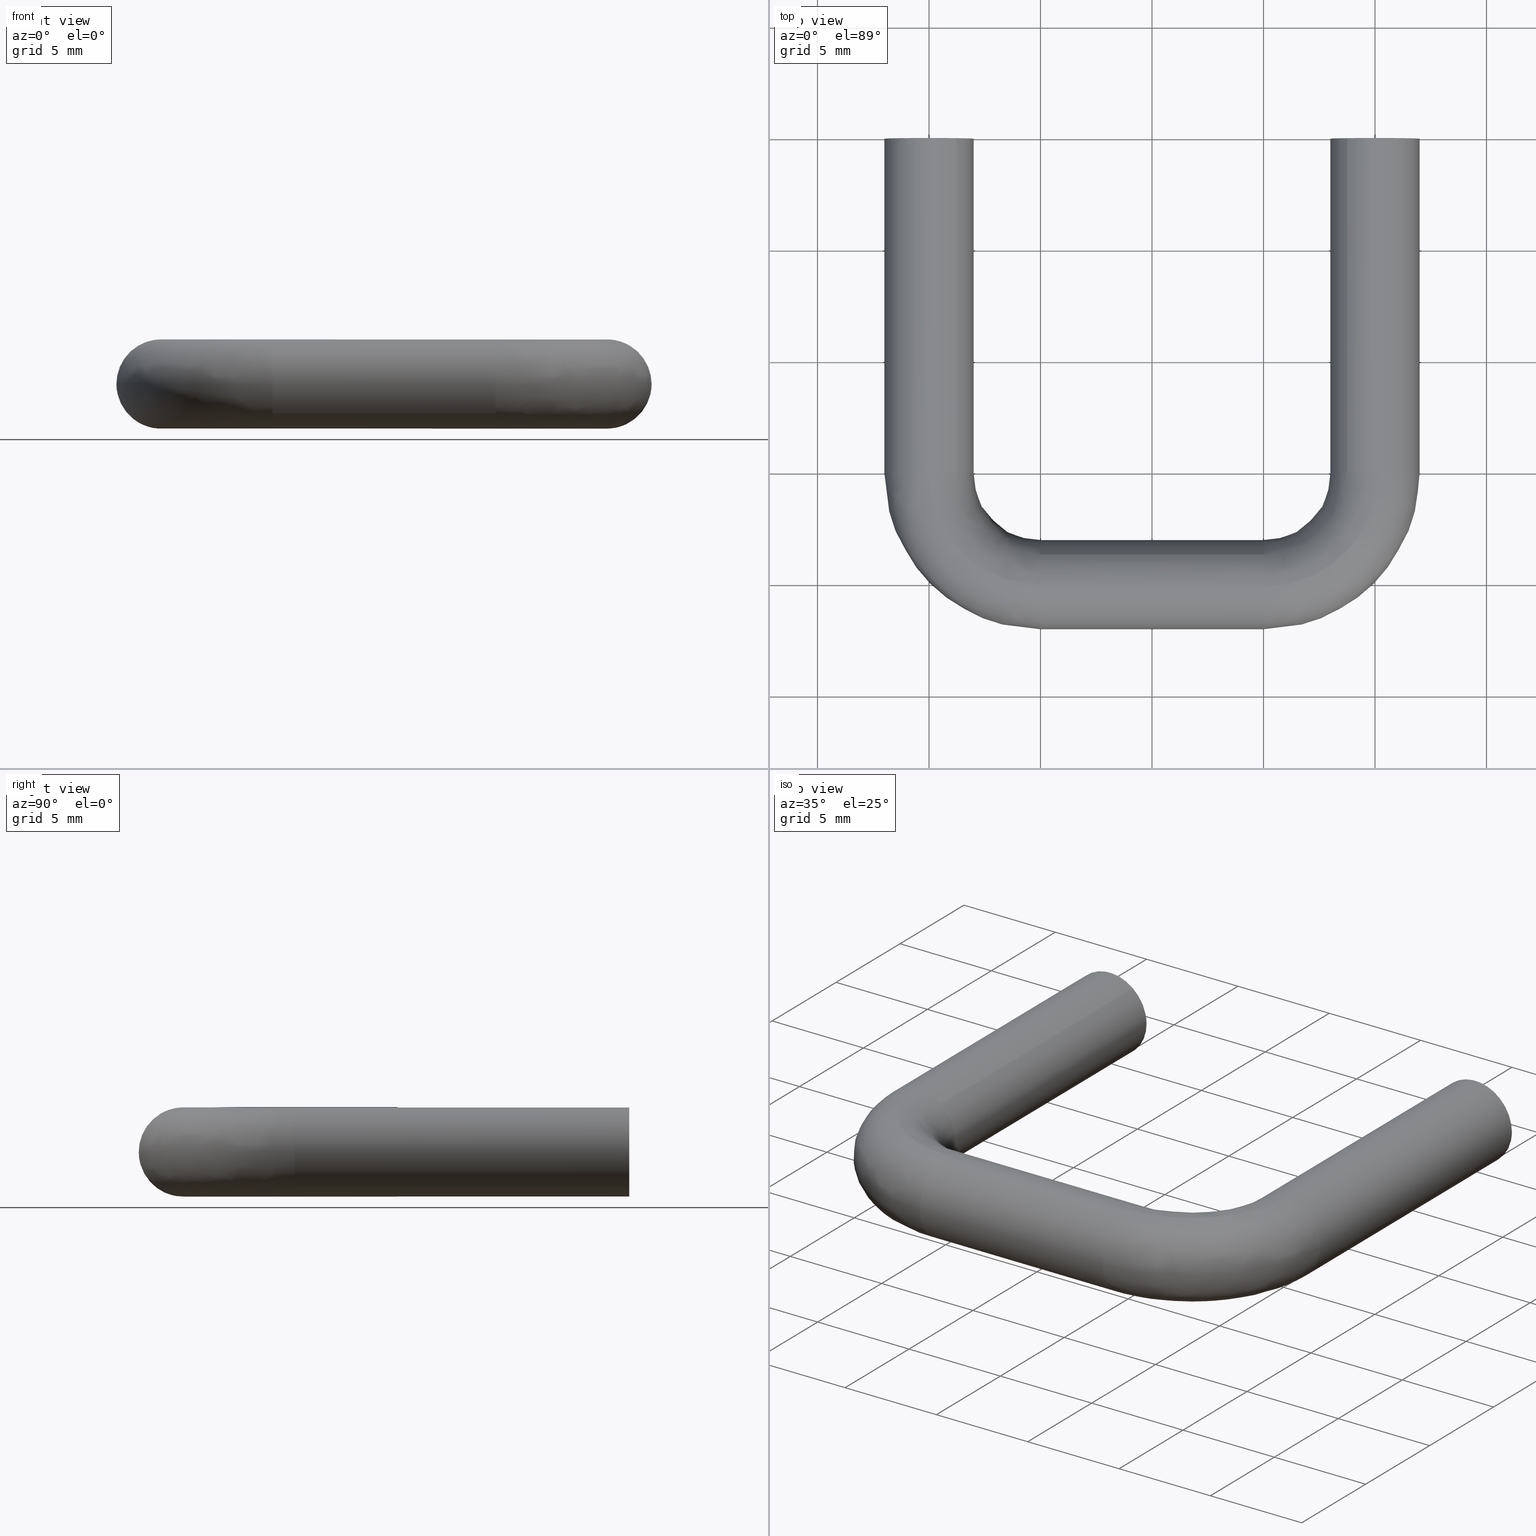
[diagram: canonical four-view strip — front | top / right | iso, engineering-drawing reading convention]
A machine part, canonical four-view strip (front | top / right | iso — engineering-drawing reading convention). The complete STEP part file that produces these views, byte-faithful:
ISO-10303-21;
HEADER;
/****************************************************************
 * Generated by software with PDE/Lib inside                    *
 * PDElib Version 4.4.1-0003, patched  Thursday August 19 11:58 *
 * International Technegroup Inc. (www.iti-oh.com)              *
 ****************************************************************/
FILE_DESCRIPTION((''),'2;1');
FILE_NAME('','2006-10-08T14:59:51',(''),(''),'','CADfix','');
FILE_SCHEMA(('AUTOMOTIVE_DESIGN'));
ENDSEC;
DATA;
#5=APPLICATION_CONTEXT('automotive design');
#6=APPLICATION_PROTOCOL_DEFINITION('Draft International Standard','automotive_design',1998,#5);
#7=PRODUCT_CONTEXT('None',#5,'mechanical');
#8=PRODUCT('pull','pull','None',(#7));
#9=PRODUCT_RELATED_PRODUCT_CATEGORY('part','description',(#8));
#10=PRODUCT_DEFINITION_FORMATION('','None',#8);
#11=PRODUCT_DEFINITION_CONTEXT('part definition',#5,'design');
#12=PRODUCT_DEFINITION('None','None',#10,#11);
#18=(NAMED_UNIT(*)PLANE_ANGLE_UNIT()SI_UNIT($,.RADIAN.));
#19=DIMENSIONAL_EXPONENTS(0.0,0.0,0.0,0.0,0.0,0.0,0.0);
#20=PLANE_ANGLE_MEASURE_WITH_UNIT(PLANE_ANGLE_MEASURE(0.017453292500000),#18);
#24=(CONVERSION_BASED_UNIT('DEGREE',#20)NAMED_UNIT(#19)PLANE_ANGLE_UNIT());
#28=(NAMED_UNIT(*)SI_UNIT($,.STERADIAN.)SOLID_ANGLE_UNIT());
#32=(LENGTH_UNIT()NAMED_UNIT(*)SI_UNIT(.MILLI.,.METRE.));
#34=UNCERTAINTY_MEASURE_WITH_UNIT(LENGTH_MEASURE(0.001000000000000),#32,'DISTANCE_ACCURACY_VALUE','');
#36=(GEOMETRIC_REPRESENTATION_CONTEXT(3)GLOBAL_UNCERTAINTY_ASSIGNED_CONTEXT((#34))GLOBAL_UNIT_ASSIGNED_CONTEXT((#24,#28,#32))REPRESENTATION_CONTEXT('None','None'));
#37=AXIS2_PLACEMENT_3D('',#38,#39,#40);
#38=CARTESIAN_POINT('',(0.0,0.0,0.0));
#39=DIRECTION('',(0.0,0.0,1.0));
#40=DIRECTION('',(1.0,0.0,0.0));
#41=ADVANCED_BREP_SHAPE_REPRESENTATION('',(#37,#1347),#36);
#42=PRODUCT_DEFINITION_SHAPE('','',#12);
#43=SHAPE_DEFINITION_REPRESENTATION(#42,#41);
#44=CARTESIAN_POINT('',(-1.295992533853066,-10.250000000000000,0.101996824446199));
#45=CARTESIAN_POINT('',(-1.193995709406867,-10.250000000000002,1.397989358299265));
#46=CARTESIAN_POINT('',(0.101996824446199,-10.250000000000000,1.295992533853066));
#47=CARTESIAN_POINT('',(1.397989358299265,-10.250000000000002,1.193995709406867));
#48=CARTESIAN_POINT('',(1.295992533853066,-10.250000000000000,-0.101996824446199));
#49=CARTESIAN_POINT('',(-1.295992533853066,0.256250000000001,0.101996824446199));
#50=CARTESIAN_POINT('',(-1.193995709406867,0.256250000000001,1.397989358299265));
#51=CARTESIAN_POINT('',(0.101996824446199,0.256250000000001,1.295992533853066));
#52=CARTESIAN_POINT('',(1.397989358299265,0.256250000000001,1.193995709406867));
#53=CARTESIAN_POINT('',(1.295992533853066,0.256250000000001,-0.101996824446199));
#61=(BOUNDED_SURFACE()B_SPLINE_SURFACE(2,1,((#44,#49),(#45,#50),(#46,#51),(#47,#52),(#48,#53)),.UNSPECIFIED.,.F.,.F.,.U.)B_SPLINE_SURFACE_WITH_KNOTS((3,2,3),(2,2),(3.141592653589793,4.712388980384690,6.283185307179586),(0.0,10.506250000000000),.UNSPECIFIED.)GEOMETRIC_REPRESENTATION_ITEM()RATIONAL_B_SPLINE_SURFACE(((1.0,1.0),(0.707106781186548,0.707106781186548),(1.0,1.0),(0.707106781186548,0.707106781186548),(1.0,1.0)))REPRESENTATION_ITEM('')SURFACE());
#62=CARTESIAN_POINT('',(0.0,-10.0,1.300000000000000));
#63=VERTEX_POINT('',#62);
#64=CARTESIAN_POINT('',(-1.295992599121702,-10.0,0.101995995122767));
#65=VERTEX_POINT('',#64);
#66=CARTESIAN_POINT('',(0.0,-10.0,1.300000000000000));
#67=CARTESIAN_POINT('',(-1.201709181890702,-9.999999999999998,1.300000000000000));
#68=CARTESIAN_POINT('',(-1.295992599121702,-10.0,0.101995995122767));
#76=(BOUNDED_CURVE()B_SPLINE_CURVE(2,(#66,#67,#68),.UNSPECIFIED.,.F.,.U.)B_SPLINE_CURVE_WITH_KNOTS((3,3),(0.0,0.236331520026582),.UNSPECIFIED.)CURVE()GEOMETRIC_REPRESENTATION_ITEM()RATIONAL_B_SPLINE_CURVE((1.0,0.723120401569355,0.969723814030421))REPRESENTATION_ITEM(''));
#77=EDGE_CURVE('',#63,#65,#76,.T.);
#78=ORIENTED_EDGE('',*,*,#77,.T.);
#79=CARTESIAN_POINT('',(-1.295992598337483,-2.775558E-017,0.101996005087369));
#80=VERTEX_POINT('',#79);
#81=CARTESIAN_POINT('',(-1.295992599121702,-10.0,0.101995995122767));
#82=CARTESIAN_POINT('',(-1.295992598337483,-2.775558E-017,0.101996005087369));
#83=QUASI_UNIFORM_CURVE('',1,(#81,#82),.UNSPECIFIED.,.F.,.U.);
#84=EDGE_CURVE('',#65,#80,#83,.T.);
#85=ORIENTED_EDGE('',*,*,#84,.T.);
#86=CARTESIAN_POINT('',(0.0,0.0,1.300000000000000));
#87=VERTEX_POINT('',#86);
#88=CARTESIAN_POINT('',(0.0,0.0,1.300000000000000));
#89=CARTESIAN_POINT('',(-1.201709163354209,0.0,1.300000000000000));
#90=CARTESIAN_POINT('',(-1.295992598337484,-2.775558E-017,0.101996005087369));
#98=(BOUNDED_CURVE()B_SPLINE_CURVE(2,(#88,#89,#90),.UNSPECIFIED.,.F.,.U.)B_SPLINE_CURVE_WITH_KNOTS((3,3),(0.0,0.236331517390490),.UNSPECIFIED.)CURVE()GEOMETRIC_REPRESENTATION_ITEM()RATIONAL_B_SPLINE_CURVE((1.0,0.723120404657728,0.969723808529088))REPRESENTATION_ITEM(''));
#99=EDGE_CURVE('',#87,#80,#98,.T.);
#100=ORIENTED_EDGE('',*,*,#99,.F.);
#101=CARTESIAN_POINT('',(1.295992598337483,5.551115E-016,-0.101996005087369));
#102=VERTEX_POINT('',#101);
#103=CARTESIAN_POINT('',(1.295992598337484,5.551115E-016,-0.101996005087369));
#104=CARTESIAN_POINT('',(1.300000000000000,0.0,-0.051076315948816));
#105=CARTESIAN_POINT('',(1.300000000000000,0.0,0.0));
#106=CARTESIAN_POINT('',(1.300000000000000,0.0,1.300000000000000));
#107=CARTESIAN_POINT('',(0.0,0.0,1.300000000000000));
#115=(BOUNDED_CURVE()B_SPLINE_CURVE(2,(#103,#104,#105,#106,#107),.UNSPECIFIED.,.F.,.U.)B_SPLINE_CURVE_WITH_KNOTS((3,2,3),(0.736331517390490,0.750000000000000,1.0),.UNSPECIFIED.)CURVE()GEOMETRIC_REPRESENTATION_ITEM()RATIONAL_B_SPLINE_CURVE((0.969723808529088,0.983986376528820,1.0,0.707106781186548,1.0))REPRESENTATION_ITEM(''));
#116=EDGE_CURVE('',#102,#87,#115,.T.);
#117=ORIENTED_EDGE('',*,*,#116,.F.);
#118=CARTESIAN_POINT('',(1.295992599121702,-10.0,-0.101995995122767));
#119=VERTEX_POINT('',#118);
#120=CARTESIAN_POINT('',(1.295992599121702,-10.0,-0.101995995122767));
#121=CARTESIAN_POINT('',(1.295992598337483,5.551115E-016,-0.101996005087369));
#122=QUASI_UNIFORM_CURVE('',1,(#120,#121),.UNSPECIFIED.,.F.,.U.);
#123=EDGE_CURVE('',#119,#102,#122,.T.);
#124=ORIENTED_EDGE('',*,*,#123,.F.);
#125=CARTESIAN_POINT('',(1.295992599121702,-10.0,-0.101995995122767));
#126=CARTESIAN_POINT('',(1.300000000000000,-10.0,-0.051076305937973));
#127=CARTESIAN_POINT('',(1.300000000000000,-10.0,0.0));
#128=CARTESIAN_POINT('',(1.300000000000000,-10.000000000000002,1.300000000000000));
#129=CARTESIAN_POINT('',(0.0,-10.0,1.300000000000000));
#137=(BOUNDED_CURVE()B_SPLINE_CURVE(2,(#125,#126,#127,#128,#129),.UNSPECIFIED.,.F.,.U.)B_SPLINE_CURVE_WITH_KNOTS((3,2,3),(0.736331520026582,0.750000000000000,1.0),.UNSPECIFIED.)CURVE()GEOMETRIC_REPRESENTATION_ITEM()RATIONAL_B_SPLINE_CURVE((0.969723814030421,0.983986379617193,1.0,0.707106781186548,1.0))REPRESENTATION_ITEM(''));
#138=EDGE_CURVE('',#119,#63,#137,.T.);
#139=ORIENTED_EDGE('',*,*,#138,.T.);
#140=EDGE_LOOP('',(#78,#85,#100,#117,#124,#139));
#141=FACE_OUTER_BOUND('',#140,.T.);
#142=ADVANCED_FACE('',(#141),#61,.F.);
#143=CARTESIAN_POINT('',(1.295992533853066,-10.250000000000000,-0.101996824446199));
#144=CARTESIAN_POINT('',(1.193995709406867,-10.250000000000002,-1.397989358299265));
#145=CARTESIAN_POINT('',(-0.101996824446199,-10.250000000000000,-1.295992533853066));
#146=CARTESIAN_POINT('',(-1.397989358299265,-10.250000000000002,-1.193995709406867));
#147=CARTESIAN_POINT('',(-1.295992533853066,-10.250000000000000,0.101996824446199));
#148=CARTESIAN_POINT('',(1.295992533853066,0.256250000000001,-0.101996824446199));
#149=CARTESIAN_POINT('',(1.193995709406867,0.256250000000001,-1.397989358299265));
#150=CARTESIAN_POINT('',(-0.101996824446199,0.256250000000001,-1.295992533853066));
#151=CARTESIAN_POINT('',(-1.397989358299265,0.256250000000001,-1.193995709406867));
#152=CARTESIAN_POINT('',(-1.295992533853066,0.256250000000001,0.101996824446199));
#160=(BOUNDED_SURFACE()B_SPLINE_SURFACE(2,1,((#143,#148),(#144,#149),(#145,#150),(#146,#151),(#147,#152)),.UNSPECIFIED.,.F.,.F.,.U.)B_SPLINE_SURFACE_WITH_KNOTS((3,2,3),(2,2),(0.0,1.570796326794897,3.141592653589793),(0.0,10.506250000000000),.UNSPECIFIED.)GEOMETRIC_REPRESENTATION_ITEM()RATIONAL_B_SPLINE_SURFACE(((1.0,1.0),(0.707106781186548,0.707106781186548),(1.0,1.0),(0.707106781186548,0.707106781186548),(1.0,1.0)))REPRESENTATION_ITEM('')SURFACE());
#161=CARTESIAN_POINT('',(0.0,-10.0,-1.300000000000000));
#162=VERTEX_POINT('',#161);
#163=CARTESIAN_POINT('',(-1.295992599121702,-10.0,0.101995995122767));
#164=CARTESIAN_POINT('',(-1.300000000000000,-10.0,0.051076305937973));
#165=CARTESIAN_POINT('',(-1.300000000000000,-10.0,0.0));
#166=CARTESIAN_POINT('',(-1.300000000000000,-10.000000000000002,-1.300000000000000));
#167=CARTESIAN_POINT('',(0.0,-10.0,-1.300000000000000));
#175=(BOUNDED_CURVE()B_SPLINE_CURVE(2,(#163,#164,#165,#166,#167),.UNSPECIFIED.,.F.,.U.)B_SPLINE_CURVE_WITH_KNOTS((3,2,3),(0.236331520026582,0.250000000000000,0.500000000000000),.UNSPECIFIED.)CURVE()GEOMETRIC_REPRESENTATION_ITEM()RATIONAL_B_SPLINE_CURVE((0.969723814030421,0.983986379617193,1.0,0.707106781186548,1.0))REPRESENTATION_ITEM(''));
#176=EDGE_CURVE('',#65,#162,#175,.T.);
#177=ORIENTED_EDGE('',*,*,#176,.T.);
#178=CARTESIAN_POINT('',(0.0,-10.0,-1.300000000000000));
#179=CARTESIAN_POINT('',(1.201709181890709,-9.999999999999998,-1.300000000000000));
#180=CARTESIAN_POINT('',(1.295992599121701,-10.0,-0.101995995122767));
#188=(BOUNDED_CURVE()B_SPLINE_CURVE(2,(#178,#179,#180),.UNSPECIFIED.,.F.,.U.)B_SPLINE_CURVE_WITH_KNOTS((3,3),(0.500000000000000,0.736331520026583),.UNSPECIFIED.)CURVE()GEOMETRIC_REPRESENTATION_ITEM()RATIONAL_B_SPLINE_CURVE((1.0,0.723120401569353,0.969723814030423))REPRESENTATION_ITEM(''));
#189=EDGE_CURVE('',#162,#119,#188,.T.);
#190=ORIENTED_EDGE('',*,*,#189,.T.);
#191=ORIENTED_EDGE('',*,*,#123,.T.);
#192=CARTESIAN_POINT('',(0.0,0.0,-1.300000000000000));
#193=VERTEX_POINT('',#192);
#194=CARTESIAN_POINT('',(0.0,0.0,-1.300000000000000));
#195=CARTESIAN_POINT('',(1.201709163354216,0.0,-1.300000000000000));
#196=CARTESIAN_POINT('',(1.295992598337483,5.551115E-016,-0.101996005087369));
#204=(BOUNDED_CURVE()B_SPLINE_CURVE(2,(#194,#195,#196),.UNSPECIFIED.,.F.,.U.)B_SPLINE_CURVE_WITH_KNOTS((3,3),(0.500000000000000,0.736331517390491),.UNSPECIFIED.)CURVE()GEOMETRIC_REPRESENTATION_ITEM()RATIONAL_B_SPLINE_CURVE((1.0,0.723120404657727,0.969723808529090))REPRESENTATION_ITEM(''));
#205=EDGE_CURVE('',#193,#102,#204,.T.);
#206=ORIENTED_EDGE('',*,*,#205,.F.);
#207=CARTESIAN_POINT('',(-1.295992598337484,-2.775558E-017,0.101996005087369));
#208=CARTESIAN_POINT('',(-1.300000000000000,0.0,0.051076315948816));
#209=CARTESIAN_POINT('',(-1.300000000000000,0.0,0.0));
#210=CARTESIAN_POINT('',(-1.300000000000000,0.0,-1.300000000000000));
#211=CARTESIAN_POINT('',(0.0,0.0,-1.300000000000000));
#219=(BOUNDED_CURVE()B_SPLINE_CURVE(2,(#207,#208,#209,#210,#211),.UNSPECIFIED.,.F.,.U.)B_SPLINE_CURVE_WITH_KNOTS((3,2,3),(0.236331517390490,0.250000000000000,0.500000000000000),.UNSPECIFIED.)CURVE()GEOMETRIC_REPRESENTATION_ITEM()RATIONAL_B_SPLINE_CURVE((0.969723808529088,0.983986376528820,1.0,0.707106781186548,1.0))REPRESENTATION_ITEM(''));
#220=EDGE_CURVE('',#80,#193,#219,.T.);
#221=ORIENTED_EDGE('',*,*,#220,.F.);
#222=ORIENTED_EDGE('',*,*,#84,.F.);
#223=EDGE_LOOP('',(#177,#190,#191,#206,#221,#222));
#224=FACE_OUTER_BOUND('',#223,.T.);
#225=ADVANCED_FACE('',(#224),#160,.F.);
#226=CARTESIAN_POINT('',(18.704007466146930,-10.250000000000000,0.101996824446199));
#227=CARTESIAN_POINT('',(18.806004290593126,-10.250000000000002,1.397989358299265));
#228=CARTESIAN_POINT('',(20.101996824446200,-10.250000000000000,1.295992533853066));
#229=CARTESIAN_POINT('',(21.397989358299263,-10.250000000000002,1.193995709406867));
#230=CARTESIAN_POINT('',(21.295992533853070,-10.250000000000000,-0.101996824446199));
#231=CARTESIAN_POINT('',(18.704007466146930,0.256250000000001,0.101996824446199));
#232=CARTESIAN_POINT('',(18.806004290593126,0.256250000000001,1.397989358299265));
#233=CARTESIAN_POINT('',(20.101996824446200,0.256250000000001,1.295992533853066));
#234=CARTESIAN_POINT('',(21.397989358299263,0.256250000000001,1.193995709406867));
#235=CARTESIAN_POINT('',(21.295992533853070,0.256250000000001,-0.101996824446199));
#243=(BOUNDED_SURFACE()B_SPLINE_SURFACE(2,1,((#226,#231),(#227,#232),(#228,#233),(#229,#234),(#230,#235)),.UNSPECIFIED.,.F.,.F.,.U.)B_SPLINE_SURFACE_WITH_KNOTS((3,2,3),(2,2),(3.141592653589793,4.712388980384690,6.283185307179586),(0.0,10.506250000000000),.UNSPECIFIED.)GEOMETRIC_REPRESENTATION_ITEM()RATIONAL_B_SPLINE_SURFACE(((1.0,1.0),(0.707106781186548,0.707106781186548),(1.0,1.0),(0.707106781186548,0.707106781186548),(1.0,1.0)))REPRESENTATION_ITEM('')SURFACE());
#244=CARTESIAN_POINT('',(20.0,-10.0,1.300000000000000));
#245=VERTEX_POINT('',#244);
#246=CARTESIAN_POINT('',(18.704007400878300,-10.0,0.101995995122767));
#247=VERTEX_POINT('',#246);
#248=CARTESIAN_POINT('',(20.0,-10.0,1.300000000000000));
#249=CARTESIAN_POINT('',(18.798290818109297,-10.0,1.300000000000000));
#250=CARTESIAN_POINT('',(18.704007400878300,-10.0,0.101995995122767));
#258=(BOUNDED_CURVE()B_SPLINE_CURVE(2,(#248,#249,#250),.UNSPECIFIED.,.F.,.U.)B_SPLINE_CURVE_WITH_KNOTS((3,3),(0.0,0.236331520026582),.UNSPECIFIED.)CURVE()GEOMETRIC_REPRESENTATION_ITEM()RATIONAL_B_SPLINE_CURVE((1.0,0.723120401569354,0.969723814030421))REPRESENTATION_ITEM(''));
#259=EDGE_CURVE('',#245,#247,#258,.T.);
#260=ORIENTED_EDGE('',*,*,#259,.T.);
#261=CARTESIAN_POINT('',(18.704007401662519,5.551115E-016,0.101996005087368));
#262=VERTEX_POINT('',#261);
#263=CARTESIAN_POINT('',(18.704007400878300,-10.0,0.101995995122767));
#264=CARTESIAN_POINT('',(18.704007401662519,5.551115E-016,0.101996005087368));
#265=QUASI_UNIFORM_CURVE('',1,(#263,#264),.UNSPECIFIED.,.F.,.U.);
#266=EDGE_CURVE('',#247,#262,#265,.T.);
#267=ORIENTED_EDGE('',*,*,#266,.T.);
#268=CARTESIAN_POINT('',(20.0,0.0,1.300000000000000));
#269=VERTEX_POINT('',#268);
#270=CARTESIAN_POINT('',(20.0,0.0,1.300000000000000));
#271=CARTESIAN_POINT('',(18.798290836645794,0.0,1.300000000000000));
#272=CARTESIAN_POINT('',(18.704007401662512,5.551115E-016,0.101996005087368));
#280=(BOUNDED_CURVE()B_SPLINE_CURVE(2,(#270,#271,#272),.UNSPECIFIED.,.F.,.U.)B_SPLINE_CURVE_WITH_KNOTS((3,3),(0.0,0.236331517390490),.UNSPECIFIED.)CURVE()GEOMETRIC_REPRESENTATION_ITEM()RATIONAL_B_SPLINE_CURVE((1.0,0.723120404657728,0.969723808529088))REPRESENTATION_ITEM(''));
#281=EDGE_CURVE('',#269,#262,#280,.T.);
#282=ORIENTED_EDGE('',*,*,#281,.F.);
#283=CARTESIAN_POINT('',(21.295992598337481,1.124101E-015,-0.101996005087369));
#284=VERTEX_POINT('',#283);
#285=CARTESIAN_POINT('',(21.295992598337481,1.124101E-015,-0.101996005087369));
#286=CARTESIAN_POINT('',(21.300000000000004,0.0,-0.051076315948816));
#287=CARTESIAN_POINT('',(21.300000000000001,0.0,0.0));
#288=CARTESIAN_POINT('',(21.300000000000008,0.0,1.300000000000000));
#289=CARTESIAN_POINT('',(20.0,0.0,1.300000000000000));
#297=(BOUNDED_CURVE()B_SPLINE_CURVE(2,(#285,#286,#287,#288,#289),.UNSPECIFIED.,.F.,.U.)B_SPLINE_CURVE_WITH_KNOTS((3,2,3),(0.736331517390490,0.750000000000000,1.0),.UNSPECIFIED.)CURVE()GEOMETRIC_REPRESENTATION_ITEM()RATIONAL_B_SPLINE_CURVE((0.969723808529088,0.983986376528820,1.0,0.707106781186548,1.0))REPRESENTATION_ITEM(''));
#298=EDGE_CURVE('',#284,#269,#297,.T.);
#299=ORIENTED_EDGE('',*,*,#298,.F.);
#300=CARTESIAN_POINT('',(21.295992599121700,-10.0,-0.101995995122767));
#301=VERTEX_POINT('',#300);
#302=CARTESIAN_POINT('',(21.295992599121700,-10.0,-0.101995995122767));
#303=CARTESIAN_POINT('',(21.295992598337481,1.124101E-015,-0.101996005087369));
#304=QUASI_UNIFORM_CURVE('',1,(#302,#303),.UNSPECIFIED.,.F.,.U.);
#305=EDGE_CURVE('',#301,#284,#304,.T.);
#306=ORIENTED_EDGE('',*,*,#305,.F.);
#307=CARTESIAN_POINT('',(21.295992599121700,-10.0,-0.101995995122767));
#308=CARTESIAN_POINT('',(21.299999999999997,-10.0,-0.051076305937973));
#309=CARTESIAN_POINT('',(21.300000000000001,-10.0,0.0));
#310=CARTESIAN_POINT('',(21.300000000000008,-10.000000000000002,1.300000000000000));
#311=CARTESIAN_POINT('',(20.0,-10.0,1.300000000000000));
#319=(BOUNDED_CURVE()B_SPLINE_CURVE(2,(#307,#308,#309,#310,#311),.UNSPECIFIED.,.F.,.U.)B_SPLINE_CURVE_WITH_KNOTS((3,2,3),(0.736331520026582,0.750000000000000,1.0),.UNSPECIFIED.)CURVE()GEOMETRIC_REPRESENTATION_ITEM()RATIONAL_B_SPLINE_CURVE((0.969723814030421,0.983986379617193,1.0,0.707106781186548,1.0))REPRESENTATION_ITEM(''));
#320=EDGE_CURVE('',#301,#245,#319,.T.);
#321=ORIENTED_EDGE('',*,*,#320,.T.);
#322=EDGE_LOOP('',(#260,#267,#282,#299,#306,#321));
#323=FACE_OUTER_BOUND('',#322,.T.);
#324=ADVANCED_FACE('',(#323),#243,.F.);
#325=CARTESIAN_POINT('',(21.295992533853070,-10.250000000000000,-0.101996824446199));
#326=CARTESIAN_POINT('',(21.193995709406867,-10.250000000000002,-1.397989358299265));
#327=CARTESIAN_POINT('',(19.898003175553800,-10.250000000000000,-1.295992533853066));
#328=CARTESIAN_POINT('',(18.602010641700733,-10.250000000000002,-1.193995709406867));
#329=CARTESIAN_POINT('',(18.704007466146930,-10.250000000000000,0.101996824446199));
#330=CARTESIAN_POINT('',(21.295992533853070,0.256250000000001,-0.101996824446199));
#331=CARTESIAN_POINT('',(21.193995709406867,0.256250000000001,-1.397989358299265));
#332=CARTESIAN_POINT('',(19.898003175553800,0.256250000000001,-1.295992533853066));
#333=CARTESIAN_POINT('',(18.602010641700733,0.256250000000001,-1.193995709406867));
#334=CARTESIAN_POINT('',(18.704007466146930,0.256250000000001,0.101996824446199));
#342=(BOUNDED_SURFACE()B_SPLINE_SURFACE(2,1,((#325,#330),(#326,#331),(#327,#332),(#328,#333),(#329,#334)),.UNSPECIFIED.,.F.,.F.,.U.)B_SPLINE_SURFACE_WITH_KNOTS((3,2,3),(2,2),(0.0,1.570796326794897,3.141592653589793),(0.0,10.506250000000000),.UNSPECIFIED.)GEOMETRIC_REPRESENTATION_ITEM()RATIONAL_B_SPLINE_SURFACE(((1.0,1.0),(0.707106781186548,0.707106781186548),(1.0,1.0),(0.707106781186548,0.707106781186548),(1.0,1.0)))REPRESENTATION_ITEM('')SURFACE());
#343=CARTESIAN_POINT('',(20.0,-10.0,-1.300000000000000));
#344=VERTEX_POINT('',#343);
#345=CARTESIAN_POINT('',(18.704007400878293,-10.0,0.101995995122767));
#346=CARTESIAN_POINT('',(18.700000000000006,-9.999999999999998,0.051076305937973));
#347=CARTESIAN_POINT('',(18.699999999999999,-10.0,0.0));
#348=CARTESIAN_POINT('',(18.699999999999999,-10.000000000000002,-1.300000000000000));
#349=CARTESIAN_POINT('',(20.0,-10.0,-1.300000000000000));
#357=(BOUNDED_CURVE()B_SPLINE_CURVE(2,(#345,#346,#347,#348,#349),.UNSPECIFIED.,.F.,.U.)B_SPLINE_CURVE_WITH_KNOTS((3,2,3),(0.236331520026582,0.250000000000000,0.500000000000000),.UNSPECIFIED.)CURVE()GEOMETRIC_REPRESENTATION_ITEM()RATIONAL_B_SPLINE_CURVE((0.969723814030421,0.983986379617193,1.0,0.707106781186548,1.0))REPRESENTATION_ITEM(''));
#358=EDGE_CURVE('',#247,#344,#357,.T.);
#359=ORIENTED_EDGE('',*,*,#358,.T.);
#360=CARTESIAN_POINT('',(20.0,-10.0,-1.300000000000000));
#361=CARTESIAN_POINT('',(21.201709181890713,-9.999999999999998,-1.300000000000000));
#362=CARTESIAN_POINT('',(21.295992599121707,-10.0,-0.101995995122767));
#370=(BOUNDED_CURVE()B_SPLINE_CURVE(2,(#360,#361,#362),.UNSPECIFIED.,.F.,.U.)B_SPLINE_CURVE_WITH_KNOTS((3,3),(0.500000000000000,0.736331520026583),.UNSPECIFIED.)CURVE()GEOMETRIC_REPRESENTATION_ITEM()RATIONAL_B_SPLINE_CURVE((1.0,0.723120401569353,0.969723814030423))REPRESENTATION_ITEM(''));
#371=EDGE_CURVE('',#344,#301,#370,.T.);
#372=ORIENTED_EDGE('',*,*,#371,.T.);
#373=ORIENTED_EDGE('',*,*,#305,.T.);
#374=CARTESIAN_POINT('',(20.0,0.0,-1.300000000000000));
#375=VERTEX_POINT('',#374);
#376=CARTESIAN_POINT('',(20.0,0.0,-1.300000000000000));
#377=CARTESIAN_POINT('',(21.201709163354217,0.0,-1.300000000000000));
#378=CARTESIAN_POINT('',(21.295992598337481,1.124101E-015,-0.101996005087369));
#386=(BOUNDED_CURVE()B_SPLINE_CURVE(2,(#376,#377,#378),.UNSPECIFIED.,.F.,.U.)B_SPLINE_CURVE_WITH_KNOTS((3,3),(0.500000000000000,0.736331517390491),.UNSPECIFIED.)CURVE()GEOMETRIC_REPRESENTATION_ITEM()RATIONAL_B_SPLINE_CURVE((1.0,0.723120404657727,0.969723808529090))REPRESENTATION_ITEM(''));
#387=EDGE_CURVE('',#375,#284,#386,.T.);
#388=ORIENTED_EDGE('',*,*,#387,.F.);
#389=CARTESIAN_POINT('',(18.704007401662519,5.551115E-016,0.101996005087368));
#390=CARTESIAN_POINT('',(18.700000000000003,0.0,0.051076315948816));
#391=CARTESIAN_POINT('',(18.699999999999999,0.0,0.0));
#392=CARTESIAN_POINT('',(18.699999999999999,0.0,-1.300000000000000));
#393=CARTESIAN_POINT('',(20.0,0.0,-1.300000000000000));
#401=(BOUNDED_CURVE()B_SPLINE_CURVE(2,(#389,#390,#391,#392,#393),.UNSPECIFIED.,.F.,.U.)B_SPLINE_CURVE_WITH_KNOTS((3,2,3),(0.236331517390490,0.250000000000000,0.500000000000000),.UNSPECIFIED.)CURVE()GEOMETRIC_REPRESENTATION_ITEM()RATIONAL_B_SPLINE_CURVE((0.969723808529089,0.983986376528820,1.0,0.707106781186548,1.0))REPRESENTATION_ITEM(''));
#402=EDGE_CURVE('',#262,#375,#401,.T.);
#403=ORIENTED_EDGE('',*,*,#402,.F.);
#404=ORIENTED_EDGE('',*,*,#266,.F.);
#405=EDGE_LOOP('',(#359,#372,#373,#388,#403,#404));
#406=FACE_OUTER_BOUND('',#405,.T.);
#407=ADVANCED_FACE('',(#406),#342,.F.);
#408=CARTESIAN_POINT('',(21.245029273275239,-15.375000000082229,-1.565216313704828));
#409=CARTESIAN_POINT('',(19.679812959570416,-15.375000000082226,-2.810245586980066));
#410=CARTESIAN_POINT('',(18.434783686295170,-15.375000000082229,-1.245029273275238));
#411=CARTESIAN_POINT('',(17.189754413019937,-15.375000000082226,0.320187040429590));
#412=CARTESIAN_POINT('',(18.754970726724761,-15.375000000082229,1.565216313704828));
#413=CARTESIAN_POINT('',(21.245029273275239,0.384375000002057,-1.565216313704828));
#414=CARTESIAN_POINT('',(19.679812959570416,0.384375000002057,-2.810245586980066));
#415=CARTESIAN_POINT('',(18.434783686295170,0.384375000002057,-1.245029273275238));
#416=CARTESIAN_POINT('',(17.189754413019926,0.384375000002057,0.320187040429590));
#417=CARTESIAN_POINT('',(18.754970726724761,0.384375000002057,1.565216313704828));
#425=(BOUNDED_SURFACE()B_SPLINE_SURFACE(2,1,((#408,#413),(#409,#414),(#410,#415),(#411,#416),(#412,#417)),.UNSPECIFIED.,.F.,.F.,.U.)B_SPLINE_SURFACE_WITH_KNOTS((3,2,3),(2,2),(0.0,3.313708498984759,6.627416997969519),(0.0,15.759375000084290),.UNSPECIFIED.)GEOMETRIC_REPRESENTATION_ITEM()RATIONAL_B_SPLINE_SURFACE(((1.0,1.0),(0.707106781186548,0.707106781186548),(1.0,1.0),(0.707106781186548,0.707106781186548),(1.0,1.0)))REPRESENTATION_ITEM('')SURFACE());
#426=CARTESIAN_POINT('',(19.974867920034221,-15.000000000080220,-1.999842088405130));
#427=VERTEX_POINT('',#426);
#428=CARTESIAN_POINT('',(21.245028317143941,-15.0,-1.565217074245048));
#429=VERTEX_POINT('',#428);
#430=CARTESIAN_POINT('',(19.974867920034217,-15.000000000080220,-1.999842088405130));
#431=CARTESIAN_POINT('',(19.987433463817126,-15.000000000000005,-2.0));
#432=CARTESIAN_POINT('',(20.0,-15.0,-2.0));
#433=CARTESIAN_POINT('',(20.698430581485816,-15.000000000000004,-2.000000000000000));
#434=CARTESIAN_POINT('',(21.245028317143937,-15.000000000000002,-1.565217074245048));
#442=(BOUNDED_CURVE()B_SPLINE_CURVE(2,(#430,#431,#432,#433,#434),.UNSPECIFIED.,.F.,.U.)B_SPLINE_CURVE_WITH_KNOTS((3,2,3),(0.247784295886715,0.250000000000000,0.357863784922316),.UNSPECIFIED.)CURVE()GEOMETRIC_REPRESENTATION_ITEM()RATIONAL_B_SPLINE_CURVE((0.994854295563426,0.997404141161287,1.0,0.873629715362804,0.856305648347035))REPRESENTATION_ITEM(''));
#443=EDGE_CURVE('',#427,#429,#442,.T.);
#444=ORIENTED_EDGE('',*,*,#443,.F.);
#445=CARTESIAN_POINT('',(18.0,-15.0,0.0));
#446=VERTEX_POINT('',#445);
#447=CARTESIAN_POINT('',(18.0,-15.0,0.0));
#448=CARTESIAN_POINT('',(18.0,-15.000000000000002,-1.975023859421392));
#449=CARTESIAN_POINT('',(19.974867920034221,-15.000000000080222,-1.999842088405130));
#457=(BOUNDED_CURVE()B_SPLINE_CURVE(2,(#447,#448,#449),.UNSPECIFIED.,.F.,.U.)B_SPLINE_CURVE_WITH_KNOTS((3,3),(0.0,0.247784295886715),.UNSPECIFIED.)CURVE()GEOMETRIC_REPRESENTATION_ITEM()RATIONAL_B_SPLINE_CURVE((1.0,0.709702640025261,0.994854295563425))REPRESENTATION_ITEM(''));
#458=EDGE_CURVE('',#446,#427,#457,.T.);
#459=ORIENTED_EDGE('',*,*,#458,.F.);
#460=CARTESIAN_POINT('',(18.754971682856059,-15.0,1.565217074245048));
#461=VERTEX_POINT('',#460);
#462=CARTESIAN_POINT('',(18.754971682856056,-15.000000000000002,1.565217074245048));
#463=CARTESIAN_POINT('',(18.000000000000004,-14.999999999999995,0.964686234616790));
#464=CARTESIAN_POINT('',(18.0,-15.0,0.0));
#472=(BOUNDED_CURVE()B_SPLINE_CURVE(2,(#462,#463,#464),.UNSPECIFIED.,.F.,.U.)B_SPLINE_CURVE_WITH_KNOTS((3,3),(0.857863784922316,1.0),.UNSPECIFIED.)CURVE()GEOMETRIC_REPRESENTATION_ITEM()RATIONAL_B_SPLINE_CURVE((0.856305648347035,0.833477065823744,1.0))REPRESENTATION_ITEM(''));
#473=EDGE_CURVE('',#461,#446,#472,.T.);
#474=ORIENTED_EDGE('',*,*,#473,.F.);
#475=CARTESIAN_POINT('',(18.754970951069641,7.008283E-016,1.565216492156750));
#476=VERTEX_POINT('',#475);
#477=CARTESIAN_POINT('',(18.754971682856059,-15.0,1.565217074245048));
#478=CARTESIAN_POINT('',(18.754970951069641,7.008283E-016,1.565216492156750));
#479=QUASI_UNIFORM_CURVE('',1,(#477,#478),.UNSPECIFIED.,.F.,.U.);
#480=EDGE_CURVE('',#461,#476,#479,.T.);
#481=ORIENTED_EDGE('',*,*,#480,.T.);
#482=CARTESIAN_POINT('',(18.0,1.734723E-015,0.0));
#483=VERTEX_POINT('',#482);
#484=CARTESIAN_POINT('',(18.754970951069637,7.008283E-016,1.565216492156751));
#485=CARTESIAN_POINT('',(18.0,1.734723E-015,0.964685834991690));
#486=CARTESIAN_POINT('',(18.0,1.734723E-015,0.0));
#494=(BOUNDED_CURVE()B_SPLINE_CURVE(2,(#484,#485,#486),.UNSPECIFIED.,.F.,.U.)B_SPLINE_CURVE_WITH_KNOTS((3,3),(0.857863833997858,1.0),.UNSPECIFIED.)CURVE()GEOMETRIC_REPRESENTATION_ITEM()RATIONAL_B_SPLINE_CURVE((0.856305632582953,0.833477123319318,1.0))REPRESENTATION_ITEM(''));
#495=EDGE_CURVE('',#476,#483,#494,.T.);
#496=ORIENTED_EDGE('',*,*,#495,.T.);
#497=CARTESIAN_POINT('',(21.245029048930359,7.008283E-016,-1.565216492156754));
#498=VERTEX_POINT('',#497);
#499=CARTESIAN_POINT('',(18.0,1.734723E-015,0.0));
#500=CARTESIAN_POINT('',(18.000000000000007,1.734723E-015,-2.000000000000000));
#501=CARTESIAN_POINT('',(20.0,1.734723E-015,-2.0));
#502=CARTESIAN_POINT('',(20.698430945221016,1.734723E-015,-2.0));
#503=CARTESIAN_POINT('',(21.245029048930355,7.008283E-016,-1.565216492156753));
#511=(BOUNDED_CURVE()B_SPLINE_CURVE(2,(#499,#500,#501,#502,#503),.UNSPECIFIED.,.F.,.U.)B_SPLINE_CURVE_WITH_KNOTS((3,2,3),(0.0,0.250000000000000,0.357863833997858),.UNSPECIFIED.)CURVE()GEOMETRIC_REPRESENTATION_ITEM()RATIONAL_B_SPLINE_CURVE((1.0,0.707106781186548,1.0,0.873629657867230,0.856305632582953))REPRESENTATION_ITEM(''));
#512=EDGE_CURVE('',#483,#498,#511,.T.);
#513=ORIENTED_EDGE('',*,*,#512,.T.);
#514=CARTESIAN_POINT('',(21.245028317143941,-15.0,-1.565217074245048));
#515=CARTESIAN_POINT('',(21.245029048930359,7.008283E-016,-1.565216492156754));
#516=QUASI_UNIFORM_CURVE('',1,(#514,#515),.UNSPECIFIED.,.F.,.U.);
#517=EDGE_CURVE('',#429,#498,#516,.T.);
#518=ORIENTED_EDGE('',*,*,#517,.F.);
#519=EDGE_LOOP('',(#444,#459,#474,#481,#496,#513,#518));
#520=FACE_OUTER_BOUND('',#519,.T.);
#521=ADVANCED_FACE('',(#520),#425,.T.);
#522=CARTESIAN_POINT('',(18.754970726724761,-15.375000000082229,1.565216313704828));
#523=CARTESIAN_POINT('',(20.320187040429595,-15.375000000082226,2.810245586980066));
#524=CARTESIAN_POINT('',(21.565216313704830,-15.375000000082229,1.245029273275238));
#525=CARTESIAN_POINT('',(22.810245586980074,-15.375000000082226,-0.320187040429590));
#526=CARTESIAN_POINT('',(21.245029273275239,-15.375000000082229,-1.565216313704828));
#527=CARTESIAN_POINT('',(18.754970726724761,0.384375000002057,1.565216313704828));
#528=CARTESIAN_POINT('',(20.320187040429580,0.384375000002058,2.810245586980066));
#529=CARTESIAN_POINT('',(21.565216313704820,0.384375000002058,1.245029273275238));
#530=CARTESIAN_POINT('',(22.810245586980059,0.384375000002058,-0.320187040429590));
#531=CARTESIAN_POINT('',(21.245029273275239,0.384375000002057,-1.565216313704828));
#539=(BOUNDED_SURFACE()B_SPLINE_SURFACE(2,1,((#522,#527),(#523,#528),(#524,#529),(#525,#530),(#526,#531)),.UNSPECIFIED.,.F.,.F.,.U.)B_SPLINE_SURFACE_WITH_KNOTS((3,2,3),(2,2),(0.0,3.313708498984768,6.627416997969536),(0.0,15.759375000084290),.UNSPECIFIED.)GEOMETRIC_REPRESENTATION_ITEM()RATIONAL_B_SPLINE_SURFACE(((1.0,1.0),(0.707106781186548,0.707106781186548),(1.0,1.0),(0.707106781186548,0.707106781186548),(1.0,1.0)))REPRESENTATION_ITEM('')SURFACE());
#540=CARTESIAN_POINT('',(22.0,-15.0,0.0));
#541=VERTEX_POINT('',#540);
#542=CARTESIAN_POINT('',(21.245028317143937,-15.000000000000002,-1.565217074245048));
#543=CARTESIAN_POINT('',(21.999999999999996,-14.999999999999995,-0.964686234616793));
#544=CARTESIAN_POINT('',(22.0,-15.0,0.0));
#552=(BOUNDED_CURVE()B_SPLINE_CURVE(2,(#542,#543,#544),.UNSPECIFIED.,.F.,.U.)B_SPLINE_CURVE_WITH_KNOTS((3,3),(0.357863784922316,0.500000000000000),.UNSPECIFIED.)CURVE()GEOMETRIC_REPRESENTATION_ITEM()RATIONAL_B_SPLINE_CURVE((0.856305648347035,0.833477065823744,1.0))REPRESENTATION_ITEM(''));
#553=EDGE_CURVE('',#429,#541,#552,.T.);
#554=ORIENTED_EDGE('',*,*,#553,.F.);
#555=ORIENTED_EDGE('',*,*,#517,.T.);
#556=CARTESIAN_POINT('',(22.0,1.734723E-015,0.0));
#557=VERTEX_POINT('',#556);
#558=CARTESIAN_POINT('',(21.245029048930355,7.008283E-016,-1.565216492156753));
#559=CARTESIAN_POINT('',(22.000000000000007,1.734723E-015,-0.964685834991696));
#560=CARTESIAN_POINT('',(22.0,1.734723E-015,0.0));
#568=(BOUNDED_CURVE()B_SPLINE_CURVE(2,(#558,#559,#560),.UNSPECIFIED.,.F.,.U.)B_SPLINE_CURVE_WITH_KNOTS((3,3),(0.357863833997858,0.500000000000000),.UNSPECIFIED.)CURVE()GEOMETRIC_REPRESENTATION_ITEM()RATIONAL_B_SPLINE_CURVE((0.856305632582953,0.833477123319317,1.0))REPRESENTATION_ITEM(''));
#569=EDGE_CURVE('',#498,#557,#568,.T.);
#570=ORIENTED_EDGE('',*,*,#569,.T.);
#571=CARTESIAN_POINT('',(22.0,1.734723E-015,0.0));
#572=CARTESIAN_POINT('',(22.000000000000007,1.734723E-015,2.000000000000000));
#573=CARTESIAN_POINT('',(20.0,1.734723E-015,2.0));
#574=CARTESIAN_POINT('',(19.301569054778987,1.734723E-015,2.0));
#575=CARTESIAN_POINT('',(18.754970951069637,7.008283E-016,1.565216492156751));
#583=(BOUNDED_CURVE()B_SPLINE_CURVE(2,(#571,#572,#573,#574,#575),.UNSPECIFIED.,.F.,.U.)B_SPLINE_CURVE_WITH_KNOTS((3,2,3),(0.500000000000000,0.750000000000000,0.857863833997858),.UNSPECIFIED.)CURVE()GEOMETRIC_REPRESENTATION_ITEM()RATIONAL_B_SPLINE_CURVE((1.0,0.707106781186548,1.0,0.873629657867230,0.856305632582953))REPRESENTATION_ITEM(''));
#584=EDGE_CURVE('',#557,#476,#583,.T.);
#585=ORIENTED_EDGE('',*,*,#584,.T.);
#586=ORIENTED_EDGE('',*,*,#480,.F.);
#587=CARTESIAN_POINT('',(20.139466503375111,-15.000000000051781,1.995131347665190));
#588=VERTEX_POINT('',#587);
#589=CARTESIAN_POINT('',(20.139466503375111,-15.000000000051777,1.995131347665191));
#590=CARTESIAN_POINT('',(20.069818231974466,-15.0,2.000000000000000));
#591=CARTESIAN_POINT('',(20.0,-15.0,2.0));
#592=CARTESIAN_POINT('',(19.301569418514180,-15.000000000000007,2.000000000000000));
#593=CARTESIAN_POINT('',(18.754971682856056,-15.000000000000002,1.565217074245048));
#601=(BOUNDED_CURVE()B_SPLINE_CURVE(2,(#589,#590,#591,#592,#593),.UNSPECIFIED.,.F.,.U.)B_SPLINE_CURVE_WITH_KNOTS((3,2,3),(0.737833686496478,0.750000000000000,0.857863784922316),.UNSPECIFIED.)CURVE()GEOMETRIC_REPRESENTATION_ITEM()RATIONAL_B_SPLINE_CURVE((0.972879876305304,0.985746277107439,1.0,0.873629715362804,0.856305648347035))REPRESENTATION_ITEM(''));
#602=EDGE_CURVE('',#588,#461,#601,.T.);
#603=ORIENTED_EDGE('',*,*,#602,.F.);
#604=CARTESIAN_POINT('',(22.0,-15.0,0.0));
#605=CARTESIAN_POINT('',(22.000000000000004,-15.0,1.865073694113004));
#606=CARTESIAN_POINT('',(20.139466503375104,-15.000000000051783,1.995131347665191));
#614=(BOUNDED_CURVE()B_SPLINE_CURVE(2,(#604,#605,#606),.UNSPECIFIED.,.F.,.U.)B_SPLINE_CURVE_WITH_KNOTS((3,3),(0.500000000000000,0.737833686496478),.UNSPECIFIED.)CURVE()GEOMETRIC_REPRESENTATION_ITEM()RATIONAL_B_SPLINE_CURVE((1.0,0.721360504079108,0.972879876305305))REPRESENTATION_ITEM(''));
#615=EDGE_CURVE('',#541,#588,#614,.T.);
#616=ORIENTED_EDGE('',*,*,#615,.F.);
#617=EDGE_LOOP('',(#554,#555,#570,#585,#586,#603,#616));
#618=FACE_OUTER_BOUND('',#617,.T.);
#619=ADVANCED_FACE('',(#618),#539,.T.);
#620=CARTESIAN_POINT('',(4.749999999916510,-21.489331602172058,-1.334875042380974));
#621=CARTESIAN_POINT('',(4.749999999916510,-21.412007858600077,-1.421145810238461));
#622=CARTESIAN_POINT('',(4.749999999916510,-21.325240096431479,-1.497911441578004));
#623=CARTESIAN_POINT('',(4.749999999916510,-19.827328654853474,-2.823151538009479));
#624=CARTESIAN_POINT('',(4.749999999916508,-18.502088558421999,-1.325240096431475));
#625=CARTESIAN_POINT('',(4.749999999916506,-17.176848461990524,0.172671345146529));
#626=CARTESIAN_POINT('',(4.749999999916508,-18.674759903568528,1.497911441578004));
#627=CARTESIAN_POINT('',(15.256250000096028,-21.489331602172058,-1.334875042380974));
#628=CARTESIAN_POINT('',(15.256250000096029,-21.412007858600077,-1.421145810238461));
#629=CARTESIAN_POINT('',(15.256250000096021,-21.325240096431472,-1.497911441578004));
#630=CARTESIAN_POINT('',(15.256250000096029,-19.827328654853474,-2.823151538009479));
#631=CARTESIAN_POINT('',(15.256250000096021,-18.502088558421988,-1.325240096431475));
#632=CARTESIAN_POINT('',(15.256250000096029,-17.176848461990510,0.172671345146529));
#633=CARTESIAN_POINT('',(15.256250000096021,-18.674759903568521,1.497911441578004));
#641=(BOUNDED_SURFACE()B_SPLINE_SURFACE(2,1,((#620,#627),(#621,#628),(#622,#629),(#623,#630),(#624,#631),(#625,#632),(#626,#633)),.UNSPECIFIED.,.F.,.F.,.U.)B_SPLINE_SURFACE_WITH_KNOTS((3,2,2,3),(2,2),(0.0,0.265096679918781,3.578805178903540,6.892513677888299),(0.0,10.506250000179520),.UNSPECIFIED.)GEOMETRIC_REPRESENTATION_ITEM()RATIONAL_B_SPLINE_SURFACE(((0.956886118190660,0.956886118190660),(0.976568542494924,0.976568542494924),(1.0,1.0),(0.707106781186548,0.707106781186548),(1.0,1.0),(0.707106781186548,0.707106781186548),(1.0,1.0)))REPRESENTATION_ITEM('')SURFACE());
#642=CARTESIAN_POINT('',(15.000000000091649,-19.974867920007419,-1.999842088404793));
#643=VERTEX_POINT('',#642);
#644=CARTESIAN_POINT('',(15.0,-21.489331918750690,-1.334874689171291));
#645=VERTEX_POINT('',#644);
#646=CARTESIAN_POINT('',(15.000000000091646,-19.974867920007423,-1.999842088404794));
#647=CARTESIAN_POINT('',(15.000000000000002,-19.987433463790317,-2.0));
#648=CARTESIAN_POINT('',(15.0,-20.0,-2.0));
#649=CARTESIAN_POINT('',(14.999999999999995,-20.893186420411176,-2.000000000000000));
#650=CARTESIAN_POINT('',(15.000000000000007,-21.489331918750693,-1.334874689171291));
#658=(BOUNDED_CURVE()B_SPLINE_CURVE(2,(#646,#647,#648,#649,#650),.UNSPECIFIED.,.F.,.U.)B_SPLINE_CURVE_WITH_KNOTS((3,2,3),(0.247784295882001,0.250000000000000,0.383246031308614),.UNSPECIFIED.)CURVE()GEOMETRIC_REPRESENTATION_ITEM()RATIONAL_B_SPLINE_CURVE((0.994854295552576,0.997404141155764,1.0,0.843892563983608,0.854190698422797))REPRESENTATION_ITEM(''));
#659=EDGE_CURVE('',#643,#645,#658,.T.);
#660=ORIENTED_EDGE('',*,*,#659,.T.);
#661=CARTESIAN_POINT('',(5.0,-21.489331914844179,-1.334874693529833));
#662=VERTEX_POINT('',#661);
#663=CARTESIAN_POINT('',(5.0,-21.489331914844179,-1.334874693529833));
#664=CARTESIAN_POINT('',(15.0,-21.489331918750690,-1.334874689171291));
#665=QUASI_UNIFORM_CURVE('',1,(#663,#664),.UNSPECIFIED.,.F.,.U.);
#666=EDGE_CURVE('',#662,#645,#665,.T.);
#667=ORIENTED_EDGE('',*,*,#666,.F.);
#668=CARTESIAN_POINT('',(4.999999999920781,-19.860533496727939,-1.995131347672394));
#669=VERTEX_POINT('',#668);
#670=CARTESIAN_POINT('',(4.999999999920782,-19.860533496727939,-1.995131347672394));
#671=CARTESIAN_POINT('',(5.0,-19.930181768128957,-2.000000000000000));
#672=CARTESIAN_POINT('',(5.0,-20.0,-2.0));
#673=CARTESIAN_POINT('',(5.0,-20.893186413390815,-2.000000000000000));
#674=CARTESIAN_POINT('',(5.0,-21.489331914844179,-1.334874693529834));
#682=(BOUNDED_CURVE()B_SPLINE_CURVE(2,(#670,#671,#672,#673,#674),.UNSPECIFIED.,.F.,.U.)B_SPLINE_CURVE_WITH_KNOTS((3,2,3),(0.237833686514243,0.250000000000000,0.383246030424804),.UNSPECIFIED.)CURVE()GEOMETRIC_REPRESENTATION_ITEM()RATIONAL_B_SPLINE_CURVE((0.972879876342880,0.985746277128253,1.0,0.843892565019056,0.854190698286184))REPRESENTATION_ITEM(''));
#683=EDGE_CURVE('',#669,#662,#682,.T.);
#684=ORIENTED_EDGE('',*,*,#683,.F.);
#685=CARTESIAN_POINT('',(5.0,-18.0,0.0));
#686=VERTEX_POINT('',#685);
#687=CARTESIAN_POINT('',(5.0,-18.0,0.0));
#688=CARTESIAN_POINT('',(5.0,-18.000000000000011,-1.865073694306130));
#689=CARTESIAN_POINT('',(4.999999999920782,-19.860533496727939,-1.995131347672394));
#697=(BOUNDED_CURVE()B_SPLINE_CURVE(2,(#687,#688,#689),.UNSPECIFIED.,.F.,.U.)B_SPLINE_CURVE_WITH_KNOTS((3,3),(0.0,0.237833686514243),.UNSPECIFIED.)CURVE()GEOMETRIC_REPRESENTATION_ITEM()RATIONAL_B_SPLINE_CURVE((1.0,0.721360504058295,0.972879876342880))REPRESENTATION_ITEM(''));
#698=EDGE_CURVE('',#686,#669,#697,.T.);
#699=ORIENTED_EDGE('',*,*,#698,.F.);
#700=CARTESIAN_POINT('',(5.0,-18.674760419665748,1.497911898181942));
#701=VERTEX_POINT('',#700);
#702=CARTESIAN_POINT('',(5.0,-18.674760419665756,1.497911898181942));
#703=CARTESIAN_POINT('',(5.0,-17.999999999999996,0.900935136300991));
#704=CARTESIAN_POINT('',(5.0,-18.0,0.0));
#712=(BOUNDED_CURVE()B_SPLINE_CURVE(2,(#702,#703,#704),.UNSPECIFIED.,.F.,.U.)B_SPLINE_CURVE_WITH_KNOTS((3,3),(0.865779783987028,1.0),.UNSPECIFIED.)CURVE()GEOMETRIC_REPRESENTATION_ITEM()RATIONAL_B_SPLINE_CURVE((0.854350176212196,0.842751235608495,1.0))REPRESENTATION_ITEM(''));
#713=EDGE_CURVE('',#701,#686,#712,.T.);
#714=ORIENTED_EDGE('',*,*,#713,.F.);
#715=CARTESIAN_POINT('',(15.0,-18.674760426112542,1.497911903885568));
#716=VERTEX_POINT('',#715);
#717=CARTESIAN_POINT('',(5.0,-18.674760419665748,1.497911898181942));
#718=CARTESIAN_POINT('',(15.0,-18.674760426112542,1.497911903885568));
#719=QUASI_UNIFORM_CURVE('',1,(#717,#718),.UNSPECIFIED.,.F.,.U.);
#720=EDGE_CURVE('',#701,#716,#719,.T.);
#721=ORIENTED_EDGE('',*,*,#720,.T.);
#722=CARTESIAN_POINT('',(15.0,-18.0,0.0));
#723=VERTEX_POINT('',#722);
#724=CARTESIAN_POINT('',(14.999999999999996,-18.674760426112531,1.497911903885568));
#725=CARTESIAN_POINT('',(15.000000000000002,-18.000000000000007,0.900935146655366));
#726=CARTESIAN_POINT('',(15.0,-18.0,0.0));
#734=(BOUNDED_CURVE()B_SPLINE_CURVE(2,(#724,#725,#726),.UNSPECIFIED.,.F.,.U.)B_SPLINE_CURVE_WITH_KNOTS((3,3),(0.865779782687015,1.0),.UNSPECIFIED.)CURVE()GEOMETRIC_REPRESENTATION_ITEM()RATIONAL_B_SPLINE_CURVE((0.854350176436883,0.842751234085435,1.0))REPRESENTATION_ITEM(''));
#735=EDGE_CURVE('',#716,#723,#734,.T.);
#736=ORIENTED_EDGE('',*,*,#735,.T.);
#737=CARTESIAN_POINT('',(15.0,-18.0,0.0));
#738=CARTESIAN_POINT('',(15.000000000000009,-18.000000000000007,-1.975023859368453));
#739=CARTESIAN_POINT('',(15.000000000091644,-19.974867920007419,-1.999842088404793));
#747=(BOUNDED_CURVE()B_SPLINE_CURVE(2,(#737,#738,#739),.UNSPECIFIED.,.F.,.U.)B_SPLINE_CURVE_WITH_KNOTS((3,3),(0.0,0.247784295882001),.UNSPECIFIED.)CURVE()GEOMETRIC_REPRESENTATION_ITEM()RATIONAL_B_SPLINE_CURVE((1.0,0.709702640030783,0.994854295552577))REPRESENTATION_ITEM(''));
#748=EDGE_CURVE('',#723,#643,#747,.T.);
#749=ORIENTED_EDGE('',*,*,#748,.T.);
#750=EDGE_LOOP('',(#660,#667,#684,#699,#714,#721,#736,#749));
#751=FACE_OUTER_BOUND('',#750,.T.);
#752=ADVANCED_FACE('',(#751),#641,.T.);
#753=CARTESIAN_POINT('',(4.749999999916508,-18.674759903568528,1.497911441578004));
#754=CARTESIAN_POINT('',(4.749999999916510,-20.172671345146536,2.823151538009479));
#755=CARTESIAN_POINT('',(4.749999999916510,-21.497911441578012,1.325240096431475));
#756=CARTESIAN_POINT('',(4.749999999916511,-22.678026749053330,-0.008637610867461));
#757=CARTESIAN_POINT('',(4.749999999916510,-21.489331602172058,-1.334875042380974));
#758=CARTESIAN_POINT('',(15.256250000096021,-18.674759903568521,1.497911441578004));
#759=CARTESIAN_POINT('',(15.256250000096029,-20.172671345146522,2.823151538009479));
#760=CARTESIAN_POINT('',(15.256250000096021,-21.497911441578001,1.325240096431475));
#761=CARTESIAN_POINT('',(15.256250000096029,-22.678026749053330,-0.008637610867461));
#762=CARTESIAN_POINT('',(15.256250000096028,-21.489331602172058,-1.334875042380974));
#770=(BOUNDED_SURFACE()B_SPLINE_SURFACE(2,1,((#753,#758),(#754,#759),(#755,#760),(#756,#761),(#757,#762)),.UNSPECIFIED.,.F.,.F.,.U.)B_SPLINE_SURFACE_WITH_KNOTS((3,2,3),(2,2),(0.0,3.313708498984765,6.362320318050749),(0.0,10.506250000179520),.UNSPECIFIED.)GEOMETRIC_REPRESENTATION_ITEM()RATIONAL_B_SPLINE_SURFACE(((1.0,1.0),(0.707106781186548,0.707106781186548),(1.0,1.0),(0.730538238691624,0.730538238691624),(0.956886118190660,0.956886118190660)))REPRESENTATION_ITEM('')SURFACE());
#771=CARTESIAN_POINT('',(15.0,-22.0,0.0));
#772=VERTEX_POINT('',#771);
#773=CARTESIAN_POINT('',(15.000000000000007,-21.489331918750693,-1.334874689171291));
#774=CARTESIAN_POINT('',(14.999999999999996,-22.000000000000007,-0.765117361107702));
#775=CARTESIAN_POINT('',(15.0,-22.0,0.0));
#783=(BOUNDED_CURVE()B_SPLINE_CURVE(2,(#773,#774,#775),.UNSPECIFIED.,.F.,.U.)B_SPLINE_CURVE_WITH_KNOTS((3,3),(0.383246031308615,0.500000000000000),.UNSPECIFIED.)CURVE()GEOMETRIC_REPRESENTATION_ITEM()RATIONAL_B_SPLINE_CURVE((0.854190698422797,0.863214217202940,1.0))REPRESENTATION_ITEM(''));
#784=EDGE_CURVE('',#645,#772,#783,.T.);
#785=ORIENTED_EDGE('',*,*,#784,.T.);
#786=CARTESIAN_POINT('',(15.000000000061659,-20.139466503413331,1.995131347662519));
#787=VERTEX_POINT('',#786);
#788=CARTESIAN_POINT('',(15.0,-22.0,0.0));
#789=CARTESIAN_POINT('',(15.000000000000007,-22.0,1.865073694041360));
#790=CARTESIAN_POINT('',(15.000000000061656,-20.139466503413328,1.995131347662519));
#798=(BOUNDED_CURVE()B_SPLINE_CURVE(2,(#788,#789,#790),.UNSPECIFIED.,.F.,.U.)B_SPLINE_CURVE_WITH_KNOTS((3,3),(0.500000000000000,0.737833686489888),.UNSPECIFIED.)CURVE()GEOMETRIC_REPRESENTATION_ITEM()RATIONAL_B_SPLINE_CURVE((1.0,0.721360504086829,0.972879876291366))REPRESENTATION_ITEM(''));
#799=EDGE_CURVE('',#772,#787,#798,.T.);
#800=ORIENTED_EDGE('',*,*,#799,.T.);
#801=CARTESIAN_POINT('',(15.000000000061664,-20.139466503413328,1.995131347662519));
#802=CARTESIAN_POINT('',(15.000000000000002,-20.069818232012832,2.000000000000000));
#803=CARTESIAN_POINT('',(15.0,-20.0,2.0));
#804=CARTESIAN_POINT('',(15.000000000000007,-19.242268580452890,2.000000000000000));
#805=CARTESIAN_POINT('',(14.999999999999998,-18.674760426112535,1.497911903885568));
#813=(BOUNDED_CURVE()B_SPLINE_CURVE(2,(#801,#802,#803,#804,#805),.UNSPECIFIED.,.F.,.U.)B_SPLINE_CURVE_WITH_KNOTS((3,2,3),(0.737833686489888,0.750000000000000,0.865779782687015),.UNSPECIFIED.)CURVE()GEOMETRIC_REPRESENTATION_ITEM()RATIONAL_B_SPLINE_CURVE((0.972879876291367,0.985746277099719,1.0,0.864355547101112,0.854350176436883))REPRESENTATION_ITEM(''));
#814=EDGE_CURVE('',#787,#716,#813,.T.);
#815=ORIENTED_EDGE('',*,*,#814,.T.);
#816=ORIENTED_EDGE('',*,*,#720,.F.);
#817=CARTESIAN_POINT('',(4.999999999979853,-20.025132079840919,1.999842088406699));
#818=VERTEX_POINT('',#817);
#819=CARTESIAN_POINT('',(4.999999999979853,-20.025132079840915,1.999842088406700));
#820=CARTESIAN_POINT('',(5.000000000000001,-20.012566536057999,2.000000000000000));
#821=CARTESIAN_POINT('',(5.0,-20.0,2.0));
#822=CARTESIAN_POINT('',(5.0,-19.242268570609649,2.000000000000000));
#823=CARTESIAN_POINT('',(5.0,-18.674760419665756,1.497911898181942));
#831=(BOUNDED_CURVE()B_SPLINE_CURVE(2,(#819,#820,#821,#822,#823),.UNSPECIFIED.,.F.,.U.)B_SPLINE_CURVE_WITH_KNOTS((3,2,3),(0.747784295908675,0.750000000000000,0.865779783987028),.UNSPECIFIED.)CURVE()GEOMETRIC_REPRESENTATION_ITEM()RATIONAL_B_SPLINE_CURVE((0.994854295613970,0.997404141187015,1.0,0.864355545578052,0.854350176212196))REPRESENTATION_ITEM(''));
#832=EDGE_CURVE('',#818,#701,#831,.T.);
#833=ORIENTED_EDGE('',*,*,#832,.F.);
#834=CARTESIAN_POINT('',(5.0,-22.0,0.0));
#835=VERTEX_POINT('',#834);
#836=CARTESIAN_POINT('',(5.0,-22.0,0.0));
#837=CARTESIAN_POINT('',(5.0,-22.0,1.975023859668028));
#838=CARTESIAN_POINT('',(4.999999999979853,-20.025132079840915,1.999842088406699));
#846=(BOUNDED_CURVE()B_SPLINE_CURVE(2,(#836,#837,#838),.UNSPECIFIED.,.F.,.U.)B_SPLINE_CURVE_WITH_KNOTS((3,3),(0.500000000000000,0.747784295908675),.UNSPECIFIED.)CURVE()GEOMETRIC_REPRESENTATION_ITEM()RATIONAL_B_SPLINE_CURVE((1.0,0.709702639999533,0.994854295613969))REPRESENTATION_ITEM(''));
#847=EDGE_CURVE('',#835,#818,#846,.T.);
#848=ORIENTED_EDGE('',*,*,#847,.F.);
#849=CARTESIAN_POINT('',(5.0,-21.489331914844179,-1.334874693529834));
#850=CARTESIAN_POINT('',(4.999999999999999,-22.0,-0.765117367817313));
#851=CARTESIAN_POINT('',(5.0,-22.0,0.0));
#859=(BOUNDED_CURVE()B_SPLINE_CURVE(2,(#849,#850,#851),.UNSPECIFIED.,.F.,.U.)B_SPLINE_CURVE_WITH_KNOTS((3,3),(0.383246030424803,0.500000000000000),.UNSPECIFIED.)CURVE()GEOMETRIC_REPRESENTATION_ITEM()RATIONAL_B_SPLINE_CURVE((0.854190698286184,0.863214216167491,1.0))REPRESENTATION_ITEM(''));
#860=EDGE_CURVE('',#662,#835,#859,.T.);
#861=ORIENTED_EDGE('',*,*,#860,.F.);
#862=ORIENTED_EDGE('',*,*,#666,.T.);
#863=EDGE_LOOP('',(#785,#800,#815,#816,#833,#848,#861,#862));
#864=FACE_OUTER_BOUND('',#863,.T.);
#865=ADVANCED_FACE('',(#864),#770,.T.);
#866=CARTESIAN_POINT('',(1.245029273275238,0.375000000003546,1.565216313704828));
#867=CARTESIAN_POINT('',(-0.320187040429589,0.375000000003546,2.810245586980066));
#868=CARTESIAN_POINT('',(-1.565216313704828,0.375000000003545,1.245029273275238));
#869=CARTESIAN_POINT('',(-2.810245586980066,0.375000000003545,-0.320187040429589));
#870=CARTESIAN_POINT('',(-1.245029273275238,0.375000000003545,-1.565216313704828));
#871=CARTESIAN_POINT('',(1.245029273275240,-15.384375000145431,1.565216313704828));
#872=CARTESIAN_POINT('',(-0.320187040429587,-15.384375000145434,2.810245586980066));
#873=CARTESIAN_POINT('',(-1.565216313704826,-15.384375000145431,1.245029273275238));
#874=CARTESIAN_POINT('',(-2.810245586980064,-15.384375000145434,-0.320187040429589));
#875=CARTESIAN_POINT('',(-1.245029273275236,-15.384375000145431,-1.565216313704828));
#883=(BOUNDED_SURFACE()B_SPLINE_SURFACE(2,1,((#866,#871),(#867,#872),(#868,#873),(#869,#874),(#870,#875)),.UNSPECIFIED.,.F.,.F.,.U.)B_SPLINE_SURFACE_WITH_KNOTS((3,2,3),(2,2),(0.0,3.313708498984759,6.627416997969518),(0.0,15.759375000148980),.UNSPECIFIED.)GEOMETRIC_REPRESENTATION_ITEM()RATIONAL_B_SPLINE_SURFACE(((1.0,1.0),(0.707106781186548,0.707106781186548),(1.0,1.0),(0.707106781186548,0.707106781186548),(1.0,1.0)))REPRESENTATION_ITEM('')SURFACE());
#884=CARTESIAN_POINT('',(-0.025132080237329,-15.000000000141799,1.999842088401717));
#885=VERTEX_POINT('',#884);
#886=CARTESIAN_POINT('',(1.245028317077243,-15.0,1.565217074298105));
#887=VERTEX_POINT('',#886);
#888=CARTESIAN_POINT('',(-0.025132080237329,-15.000000000141799,1.999842088401718));
#889=CARTESIAN_POINT('',(-0.012566536454460,-15.0,2.000000000000000));
#890=CARTESIAN_POINT('',(1.836910E-015,-15.0,2.0));
#891=CARTESIAN_POINT('',(0.698430581438011,-15.0,2.000000000000000));
#892=CARTESIAN_POINT('',(1.245028317077243,-15.0,1.565217074298105));
#900=(BOUNDED_CURVE()B_SPLINE_CURVE(2,(#888,#889,#890,#891,#892),.UNSPECIFIED.,.F.,.U.)B_SPLINE_CURVE_WITH_KNOTS((3,2,3),(0.747784295838954,0.750000000000000,0.857863784915865),.UNSPECIFIED.)CURVE()GEOMETRIC_REPRESENTATION_ITEM()RATIONAL_B_SPLINE_CURVE((0.994854295453498,0.997404141105331,1.0,0.873629715370361,0.856305648349107))REPRESENTATION_ITEM(''));
#901=EDGE_CURVE('',#885,#887,#900,.T.);
#902=ORIENTED_EDGE('',*,*,#901,.T.);
#903=CARTESIAN_POINT('',(1.245029048930357,-1.387779E-016,1.565216492156752));
#904=VERTEX_POINT('',#903);
#905=CARTESIAN_POINT('',(1.245029048930357,-1.387779E-016,1.565216492156752));
#906=CARTESIAN_POINT('',(1.245028317077243,-15.0,1.565217074298105));
#907=QUASI_UNIFORM_CURVE('',1,(#905,#906),.UNSPECIFIED.,.F.,.U.);
#908=EDGE_CURVE('',#904,#887,#907,.T.);
#909=ORIENTED_EDGE('',*,*,#908,.F.);
#910=CARTESIAN_POINT('',(-2.0,0.0,0.0));
#911=VERTEX_POINT('',#910);
#912=CARTESIAN_POINT('',(-2.0,0.0,0.0));
#913=CARTESIAN_POINT('',(-2.000000000000000,0.0,2.000000000000000));
#914=CARTESIAN_POINT('',(0.0,0.0,2.0));
#915=CARTESIAN_POINT('',(0.698430945221017,0.0,2.0));
#916=CARTESIAN_POINT('',(1.245029048930356,-1.387779E-016,1.565216492156752));
#924=(BOUNDED_CURVE()B_SPLINE_CURVE(2,(#912,#913,#914,#915,#916),.UNSPECIFIED.,.F.,.U.)B_SPLINE_CURVE_WITH_KNOTS((3,2,3),(0.500000000000000,0.750000000000000,0.857863833997858),.UNSPECIFIED.)CURVE()GEOMETRIC_REPRESENTATION_ITEM()RATIONAL_B_SPLINE_CURVE((1.0,0.707106781186548,1.0,0.873629657867230,0.856305632582953))REPRESENTATION_ITEM(''));
#925=EDGE_CURVE('',#911,#904,#924,.T.);
#926=ORIENTED_EDGE('',*,*,#925,.F.);
#927=CARTESIAN_POINT('',(-1.245029048930356,-3.053113E-016,-1.565216492156753));
#928=VERTEX_POINT('',#927);
#929=CARTESIAN_POINT('',(-1.245029048930356,-3.053113E-016,-1.565216492156753));
#930=CARTESIAN_POINT('',(-2.000000000000000,0.0,-0.964685834991694));
#931=CARTESIAN_POINT('',(-2.0,0.0,0.0));
#939=(BOUNDED_CURVE()B_SPLINE_CURVE(2,(#929,#930,#931),.UNSPECIFIED.,.F.,.U.)B_SPLINE_CURVE_WITH_KNOTS((3,3),(0.357863833997858,0.500000000000000),.UNSPECIFIED.)CURVE()GEOMETRIC_REPRESENTATION_ITEM()RATIONAL_B_SPLINE_CURVE((0.856305632582953,0.833477123319318,1.0))REPRESENTATION_ITEM(''));
#940=EDGE_CURVE('',#928,#911,#939,.T.);
#941=ORIENTED_EDGE('',*,*,#940,.F.);
#942=CARTESIAN_POINT('',(-1.245028317077239,-15.0,-1.565217074298105));
#943=VERTEX_POINT('',#942);
#944=CARTESIAN_POINT('',(-1.245029048930356,-3.053113E-016,-1.565216492156753));
#945=CARTESIAN_POINT('',(-1.245028317077239,-15.0,-1.565217074298105));
#946=QUASI_UNIFORM_CURVE('',1,(#944,#945),.UNSPECIFIED.,.F.,.U.);
#947=EDGE_CURVE('',#928,#943,#946,.T.);
#948=ORIENTED_EDGE('',*,*,#947,.T.);
#949=CARTESIAN_POINT('',(-1.999999999999998,-15.0,0.0));
#950=VERTEX_POINT('',#949);
#951=CARTESIAN_POINT('',(-1.245028317077239,-15.0,-1.565217074298105));
#952=CARTESIAN_POINT('',(-1.999999999999998,-14.999999999999998,-0.964686234669322));
#953=CARTESIAN_POINT('',(-1.999999999999998,-15.0,0.0));
#961=(BOUNDED_CURVE()B_SPLINE_CURVE(2,(#951,#952,#953),.UNSPECIFIED.,.F.,.U.)B_SPLINE_CURVE_WITH_KNOTS((3,3),(0.357863784915865,0.500000000000000),.UNSPECIFIED.)CURVE()GEOMETRIC_REPRESENTATION_ITEM()RATIONAL_B_SPLINE_CURVE((0.856305648349107,0.833477065816186,1.0))REPRESENTATION_ITEM(''));
#962=EDGE_CURVE('',#943,#950,#961,.T.);
#963=ORIENTED_EDGE('',*,*,#962,.T.);
#964=CARTESIAN_POINT('',(-1.999999999999998,-15.0,0.0));
#965=CARTESIAN_POINT('',(-1.999999999999998,-15.000000000000005,1.975023858884974));
#966=CARTESIAN_POINT('',(-0.025132080237329,-15.000000000141796,1.999842088401717));
#974=(BOUNDED_CURVE()B_SPLINE_CURVE(2,(#964,#965,#966),.UNSPECIFIED.,.F.,.U.)B_SPLINE_CURVE_WITH_KNOTS((3,3),(0.500000000000000,0.747784295838953),.UNSPECIFIED.)CURVE()GEOMETRIC_REPRESENTATION_ITEM()RATIONAL_B_SPLINE_CURVE((1.0,0.709702640081217,0.994854295453496))REPRESENTATION_ITEM(''));
#975=EDGE_CURVE('',#950,#885,#974,.T.);
#976=ORIENTED_EDGE('',*,*,#975,.T.);
#977=EDGE_LOOP('',(#902,#909,#926,#941,#948,#963,#976));
#978=FACE_OUTER_BOUND('',#977,.T.);
#979=ADVANCED_FACE('',(#978),#883,.T.);
#980=CARTESIAN_POINT('',(-1.245029273275238,0.375000000003545,-1.565216313704828));
#981=CARTESIAN_POINT('',(0.320187040429589,0.375000000003546,-2.810245586980066));
#982=CARTESIAN_POINT('',(1.565216313704828,0.375000000003546,-1.245029273275238));
#983=CARTESIAN_POINT('',(2.810245586980066,0.375000000003546,0.320187040429589));
#984=CARTESIAN_POINT('',(1.245029273275238,0.375000000003546,1.565216313704828));
#985=CARTESIAN_POINT('',(-1.245029273275236,-15.384375000145431,-1.565216313704828));
#986=CARTESIAN_POINT('',(0.320187040429591,-15.384375000145434,-2.810245586980066));
#987=CARTESIAN_POINT('',(1.565216313704830,-15.384375000145431,-1.245029273275238));
#988=CARTESIAN_POINT('',(2.810245586980068,-15.384375000145434,0.320187040429589));
#989=CARTESIAN_POINT('',(1.245029273275240,-15.384375000145431,1.565216313704828));
#997=(BOUNDED_SURFACE()B_SPLINE_SURFACE(2,1,((#980,#985),(#981,#986),(#982,#987),(#983,#988),(#984,#989)),.UNSPECIFIED.,.F.,.F.,.U.)B_SPLINE_SURFACE_WITH_KNOTS((3,2,3),(2,2),(0.0,3.313708498984759,6.627416997969518),(0.0,15.759375000148980),.UNSPECIFIED.)GEOMETRIC_REPRESENTATION_ITEM()RATIONAL_B_SPLINE_SURFACE(((1.0,1.0),(0.707106781186548,0.707106781186548),(1.0,1.0),(0.707106781186548,0.707106781186548),(1.0,1.0)))REPRESENTATION_ITEM('')SURFACE());
#998=CARTESIAN_POINT('',(2.000000000000002,-15.0,0.0));
#999=VERTEX_POINT('',#998);
#1000=CARTESIAN_POINT('',(1.245028317077243,-15.0,1.565217074298105));
#1001=CARTESIAN_POINT('',(2.000000000000002,-14.999999999999998,0.964686234669322));
#1002=CARTESIAN_POINT('',(2.000000000000002,-15.0,0.0));
#1010=(BOUNDED_CURVE()B_SPLINE_CURVE(2,(#1000,#1001,#1002),.UNSPECIFIED.,.F.,.U.)B_SPLINE_CURVE_WITH_KNOTS((3,3),(0.857863784915865,1.0),.UNSPECIFIED.)CURVE()GEOMETRIC_REPRESENTATION_ITEM()RATIONAL_B_SPLINE_CURVE((0.856305648349107,0.833477065816186,1.0))REPRESENTATION_ITEM(''));
#1011=EDGE_CURVE('',#887,#999,#1010,.T.);
#1012=ORIENTED_EDGE('',*,*,#1011,.T.);
#1013=CARTESIAN_POINT('',(0.139466503242816,-15.000000000063290,-1.995131347674439));
#1014=VERTEX_POINT('',#1013);
#1015=CARTESIAN_POINT('',(2.000000000000002,-15.0,0.0));
#1016=CARTESIAN_POINT('',(2.000000000000001,-14.999999999999996,-1.865073694360944));
#1017=CARTESIAN_POINT('',(0.139466503242816,-15.000000000063290,-1.995131347674438));
#1025=(BOUNDED_CURVE()B_SPLINE_CURVE(2,(#1015,#1016,#1017),.UNSPECIFIED.,.F.,.U.)B_SPLINE_CURVE_WITH_KNOTS((3,3),(0.0,0.237833686519285),.UNSPECIFIED.)CURVE()GEOMETRIC_REPRESENTATION_ITEM()RATIONAL_B_SPLINE_CURVE((1.0,0.721360504052388,0.972879876353544))REPRESENTATION_ITEM(''));
#1026=EDGE_CURVE('',#999,#1014,#1025,.T.);
#1027=ORIENTED_EDGE('',*,*,#1026,.T.);
#1028=CARTESIAN_POINT('',(0.139466503242816,-15.000000000063297,-1.995131347674439));
#1029=CARTESIAN_POINT('',(0.069818231841692,-14.999999999999996,-2.000000000000000));
#1030=CARTESIAN_POINT('',(1.836910E-015,-15.0,-2.0));
#1031=CARTESIAN_POINT('',(-0.698430581438007,-15.0,-2.000000000000000));
#1032=CARTESIAN_POINT('',(-1.245028317077239,-15.0,-1.565217074298105));
#1040=(BOUNDED_CURVE()B_SPLINE_CURVE(2,(#1028,#1029,#1030,#1031,#1032),.UNSPECIFIED.,.F.,.U.)B_SPLINE_CURVE_WITH_KNOTS((3,2,3),(0.237833686519285,0.250000000000000,0.357863784915865),.UNSPECIFIED.)CURVE()GEOMETRIC_REPRESENTATION_ITEM()RATIONAL_B_SPLINE_CURVE((0.972879876353545,0.985746277134160,1.0,0.873629715370361,0.856305648349107))REPRESENTATION_ITEM(''));
#1041=EDGE_CURVE('',#1014,#943,#1040,.T.);
#1042=ORIENTED_EDGE('',*,*,#1041,.T.);
#1043=ORIENTED_EDGE('',*,*,#947,.F.);
#1044=CARTESIAN_POINT('',(2.0,0.0,0.0));
#1045=VERTEX_POINT('',#1044);
#1046=CARTESIAN_POINT('',(2.0,0.0,0.0));
#1047=CARTESIAN_POINT('',(2.000000000000000,0.0,-2.000000000000000));
#1048=CARTESIAN_POINT('',(0.0,0.0,-2.0));
#1049=CARTESIAN_POINT('',(-0.698430945221018,0.0,-2.000000000000000));
#1050=CARTESIAN_POINT('',(-1.245029048930356,-3.053113E-016,-1.565216492156753));
#1058=(BOUNDED_CURVE()B_SPLINE_CURVE(2,(#1046,#1047,#1048,#1049,#1050),.UNSPECIFIED.,.F.,.U.)B_SPLINE_CURVE_WITH_KNOTS((3,2,3),(0.0,0.250000000000000,0.357863833997858),.UNSPECIFIED.)CURVE()GEOMETRIC_REPRESENTATION_ITEM()RATIONAL_B_SPLINE_CURVE((1.0,0.707106781186548,1.0,0.873629657867230,0.856305632582953))REPRESENTATION_ITEM(''));
#1059=EDGE_CURVE('',#1045,#928,#1058,.T.);
#1060=ORIENTED_EDGE('',*,*,#1059,.F.);
#1061=CARTESIAN_POINT('',(1.245029048930357,-1.387779E-016,1.565216492156752));
#1062=CARTESIAN_POINT('',(2.000000000000000,0.0,0.964685834991694));
#1063=CARTESIAN_POINT('',(2.0,0.0,0.0));
#1071=(BOUNDED_CURVE()B_SPLINE_CURVE(2,(#1061,#1062,#1063),.UNSPECIFIED.,.F.,.U.)B_SPLINE_CURVE_WITH_KNOTS((3,3),(0.857863833997858,1.0),.UNSPECIFIED.)CURVE()GEOMETRIC_REPRESENTATION_ITEM()RATIONAL_B_SPLINE_CURVE((0.856305632582953,0.833477123319318,1.0))REPRESENTATION_ITEM(''));
#1072=EDGE_CURVE('',#904,#1045,#1071,.T.);
#1073=ORIENTED_EDGE('',*,*,#1072,.F.);
#1074=ORIENTED_EDGE('',*,*,#908,.T.);
#1075=EDGE_LOOP('',(#1012,#1027,#1042,#1043,#1060,#1073,#1074));
#1076=FACE_OUTER_BOUND('',#1075,.T.);
#1077=ADVANCED_FACE('',(#1076),#997,.T.);
#1078=CARTESIAN_POINT('',(14.642616424758430,-20.127025627529385,1.995131355377935));
#1079=CARTESIAN_POINT('',(20.537966016255396,-20.537965862154927,1.995131355377935));
#1080=CARTESIAN_POINT('',(20.127025617584767,-14.642616282092858,1.995131355377935));
#1081=CARTESIAN_POINT('',(14.646586975436669,-20.070064097976729,1.999122819776260));
#1082=CARTESIAN_POINT('',(20.476438916955821,-20.476438764567408,1.999122819776260));
#1083=CARTESIAN_POINT('',(20.070064088142590,-14.646586834356125,1.999122819776261));
#1084=CARTESIAN_POINT('',(14.650566901038610,-20.012968075746208,1.999842088407632));
#1085=CARTESIAN_POINT('',(20.414766545146687,-20.414766394474380,1.999842088407632));
#1086=CARTESIAN_POINT('',(20.012968066022822,-14.650566761546829,1.999842088407631));
#1087=CARTESIAN_POINT('',(14.789630115157776,-18.017966872477039,2.024974168174338));
#1088=CARTESIAN_POINT('',(18.259862382629894,-18.259862291920356,2.024974168174337));
#1089=CARTESIAN_POINT('',(18.017966866623244,-14.789630031179273,2.024974168174339));
#1090=CARTESIAN_POINT('',(14.791377727036803,-17.992895628269377,0.025132079766706));
#1091=CARTESIAN_POINT('',(18.232781632796744,-18.232781542840765,0.025132079766706));
#1092=CARTESIAN_POINT('',(17.992895622464214,-14.791377643755926,0.025132079766706));
#1093=CARTESIAN_POINT('',(14.793125338915811,-17.967824384061721,-1.974710008640927));
#1094=CARTESIAN_POINT('',(18.205700882963587,-18.205700793761157,-1.974710008640926));
#1095=CARTESIAN_POINT('',(17.967824378305181,-14.793125256332580,-1.974710008640926));
#1096=CARTESIAN_POINT('',(14.654062124796642,-19.962825587330876,-1.999842088407632));
#1097=CARTESIAN_POINT('',(20.360605045480376,-20.360604896315191,-1.999842088407632));
#1098=CARTESIAN_POINT('',(19.962825577704745,-14.654061986700141,-1.999842088407631));
#1106=(BOUNDED_SURFACE()B_SPLINE_SURFACE(2,2,((#1078,#1081,#1084,#1087,#1090,#1093,#1096),(#1079,#1082,#1085,#1088,#1091,#1094,#1097),(#1080,#1083,#1086,#1089,#1092,#1095,#1098)),.UNSPECIFIED.,.F.,.F.,.U.)B_SPLINE_SURFACE_WITH_KNOTS((3,3),(3,2,2,3),(0.0,9.366029501457303),(0.0,0.132548213551443,3.446256712536206,6.759965211520968),.UNSPECIFIED.)GEOMETRIC_REPRESENTATION_ITEM()RATIONAL_B_SPLINE_SURFACE(((0.895729732449210,0.905606490046838,0.916342095240933,0.647951709431553,0.916342095240933,0.647951709431553,0.916342095240933),(0.587800221482116,0.594281596491894,0.601326568744382,0.425202094466791,0.601326568744382,0.425202094466791,0.601326568744382),(0.895729743804760,0.905606501527600,0.916342106857795,0.647951717645915,0.916342106857795,0.647951717645915,0.916342106857795)))REPRESENTATION_ITEM('')SURFACE());
#1107=ORIENTED_EDGE('',*,*,#602,.T.);
#1108=ORIENTED_EDGE('',*,*,#473,.T.);
#1109=ORIENTED_EDGE('',*,*,#458,.T.);
#1110=CARTESIAN_POINT('',(15.000000000091644,-19.974867920007419,-1.999842088404794));
#1111=CARTESIAN_POINT('',(19.974867920072850,-19.974867920050009,-1.999842088407631));
#1112=CARTESIAN_POINT('',(19.974867920034228,-15.000000000080217,-1.999842088405130));
#1120=(BOUNDED_CURVE()B_SPLINE_CURVE(2,(#1110,#1111,#1112),.UNSPECIFIED.,.F.,.U.)B_SPLINE_CURVE_WITH_KNOTS((3,3),(-1.734750791620118,-0.265249208375109),.UNSPECIFIED.)CURVE()GEOMETRIC_REPRESENTATION_ITEM()RATIONAL_B_SPLINE_CURVE((0.889029723562874,0.628638946230026,0.889029723564566))REPRESENTATION_ITEM(''));
#1121=EDGE_CURVE('',#643,#427,#1120,.T.);
#1122=ORIENTED_EDGE('',*,*,#1121,.F.);
#1123=ORIENTED_EDGE('',*,*,#748,.F.);
#1124=ORIENTED_EDGE('',*,*,#735,.F.);
#1125=ORIENTED_EDGE('',*,*,#814,.F.);
#1126=CARTESIAN_POINT('',(15.000000000061656,-20.139466503413328,1.995131347662519));
#1127=CARTESIAN_POINT('',(20.139466503047316,-20.139466503027563,1.995131347680863));
#1128=CARTESIAN_POINT('',(20.139466503375107,-15.000000000051781,1.995131347665191));
#1136=(BOUNDED_CURVE()B_SPLINE_CURVE(2,(#1126,#1127,#1128),.UNSPECIFIED.,.F.,.U.)B_SPLINE_CURVE_WITH_KNOTS((3,3),(-1.734750791633468,-0.265249208362536),.UNSPECIFIED.)CURVE()GEOMETRIC_REPRESENTATION_ITEM()RATIONAL_B_SPLINE_CURVE((0.869031711866623,0.614498216541095,0.869031711868007))REPRESENTATION_ITEM(''));
#1137=EDGE_CURVE('',#787,#588,#1136,.T.);
#1138=ORIENTED_EDGE('',*,*,#1137,.T.);
#1139=EDGE_LOOP('',(#1107,#1108,#1109,#1122,#1123,#1124,#1125,#1138));
#1140=FACE_OUTER_BOUND('',#1139,.T.);
#1141=ADVANCED_FACE('',(#1140),#1106,.T.);
#1142=CARTESIAN_POINT('',(14.656021217743410,-19.934720435218058,-1.999488033019797));
#1143=CARTESIAN_POINT('',(20.330247214529276,-20.330247066208827,-1.999488033019798));
#1144=CARTESIAN_POINT('',(19.934720425646432,-14.656021080428960,-1.999488033019796));
#1145=CARTESIAN_POINT('',(14.655044537632609,-19.948731890430039,-1.999664542692802));
#1146=CARTESIAN_POINT('',(20.345381713250244,-20.345381564508664,-1.999664542692803));
#1147=CARTESIAN_POINT('',(19.948731880831232,-14.655044399928274,-1.999664542692802));
#1148=CARTESIAN_POINT('',(14.514998910677473,-21.957826790600048,-2.024974168174337));
#1149=CARTESIAN_POINT('',(22.515509207997166,-22.515508998869205,-2.024974168174337));
#1150=CARTESIAN_POINT('',(21.957826777104334,-14.514998717067693,-2.024974168174337));
#1151=CARTESIAN_POINT('',(14.513251298798460,-21.982898034807718,-0.025132079766705));
#1152=CARTESIAN_POINT('',(22.542589957830316,-22.542589747948806,-0.025132079766705));
#1153=CARTESIAN_POINT('',(21.982898021263352,-14.513251104491044,-0.025132079766705));
#1154=CARTESIAN_POINT('',(14.511600935508904,-22.006574150517817,1.863425675679395));
#1155=CARTESIAN_POINT('',(22.568163757090350,-22.568163546497214,1.863425675679394));
#1156=CARTESIAN_POINT('',(22.006574136927533,-14.511600740542663,1.863425675679395));
#1157=CARTESIAN_POINT('',(14.643619401793485,-20.112636916579117,1.996139616102529));
#1158=CARTESIAN_POINT('',(20.522424024065533,-20.522423870397528,1.996139616102528));
#1159=CARTESIAN_POINT('',(20.112636906662392,-14.643619259528290,1.996139616102529));
#1160=CARTESIAN_POINT('',(14.644616875263736,-20.098327159782581,1.997142344269510));
#1161=CARTESIAN_POINT('',(20.506967314347801,-20.506967161109902,1.997142344269509));
#1162=CARTESIAN_POINT('',(20.098327149893620,-14.644616733396729,1.997142344269509));
#1170=(BOUNDED_SURFACE()B_SPLINE_SURFACE(2,2,((#1142,#1145,#1148,#1151,#1154,#1157,#1160),(#1143,#1146,#1149,#1152,#1155,#1158,#1161),(#1144,#1147,#1150,#1153,#1156,#1159,#1162)),.UNSPECIFIED.,.F.,.F.,.U.)B_SPLINE_SURFACE_WITH_KNOTS((3,3),(3,1,2,1,3),(0.0,12.756329644327010),(0.0,0.033203492437609,3.346911991422368,6.528072150447736,6.561280938012350),.UNSPECIFIED.)GEOMETRIC_REPRESENTATION_ITEM()RATIONAL_B_SPLINE_SURFACE(((0.921720660161944,0.919031377701439,0.647951709431553,0.916342095240933,0.658687324863928,0.898204248037896,0.900678782465020),(0.604856117376403,0.603091343060392,0.425202094466791,0.601326568744382,0.432247073437895,0.589424060412988,0.591047911706113),(0.921720671846993,0.919031389352394,0.647951717645915,0.916342106857795,0.658687333214390,0.898204259424817,0.900678793883311)))REPRESENTATION_ITEM('')SURFACE());
#1171=ORIENTED_EDGE('',*,*,#615,.T.);
#1172=ORIENTED_EDGE('',*,*,#1137,.F.);
#1173=ORIENTED_EDGE('',*,*,#799,.F.);
#1174=ORIENTED_EDGE('',*,*,#784,.F.);
#1175=ORIENTED_EDGE('',*,*,#659,.F.);
#1176=ORIENTED_EDGE('',*,*,#1121,.T.);
#1177=ORIENTED_EDGE('',*,*,#443,.T.);
#1178=ORIENTED_EDGE('',*,*,#553,.T.);
#1179=EDGE_LOOP('',(#1171,#1172,#1173,#1174,#1175,#1176,#1177,#1178));
#1180=FACE_OUTER_BOUND('',#1179,.T.);
#1181=ADVANCED_FACE('',(#1180),#1170,.T.);
#1182=CARTESIAN_POINT('',(0.181379603563426,-14.664113956122597,-1.993018820859031));
#1183=CARTESIAN_POINT('',(-0.204841548130509,-20.204841691052973,-1.993018820859031));
#1184=CARTESIAN_POINT('',(5.335886176194427,-19.818620387213297,-1.993018820859029));
#1185=CARTESIAN_POINT('',(0.166262408041685,-14.663060199117355,-1.994078127873748));
#1186=CARTESIAN_POINT('',(-0.221170414251807,-20.221170557622653,-1.994078127873746));
#1187=CARTESIAN_POINT('',(5.336939933614775,-19.833737582706107,-1.994078127873747));
#1188=CARTESIAN_POINT('',(0.094270442749491,-14.658041937784539,-1.999122819776261));
#1189=CARTESIAN_POINT('',(-0.298932665945565,-20.298932811451728,-1.999122819776261));
#1190=CARTESIAN_POINT('',(5.341958196924455,-19.905729547860499,-1.999122819776261));
#1191=CARTESIAN_POINT('',(0.037174420610335,-14.654062010871920,-1.999842088407632));
#1192=CARTESIAN_POINT('',(-0.360605037664787,-20.360605184864440,-1.999842088407632));
#1193=CARTESIAN_POINT('',(5.345938125404899,-19.962825569890374,-1.999842088407631));
#1194=CARTESIAN_POINT('',(-1.957826779466555,-14.514998750956270,-2.024974168174336));
#1195=CARTESIAN_POINT('',(-2.515509197039794,-22.515509403412089,-2.024974168174335));
#1196=CARTESIAN_POINT('',(5.485001440102333,-21.957826766148649,-2.024974168174336));
#1197=CARTESIAN_POINT('',(-1.982898023634100,-14.513251138501731,-0.025132079766704));
#1198=CARTESIAN_POINT('',(-2.542589946833462,-22.542590153949384,-0.025132079766704));
#1199=CARTESIAN_POINT('',(5.486749053245317,-21.982898010268205,-0.025132079766704));
#1200=CARTESIAN_POINT('',(-2.007969267801645,-14.511503526047187,1.974710008640928));
#1201=CARTESIAN_POINT('',(-2.569670696627130,-22.569670904486674,1.974710008640927));
#1202=CARTESIAN_POINT('',(5.488496666388306,-22.007969254387774,1.974710008640928));
#1203=CARTESIAN_POINT('',(0.001689531992392,-14.651588506450587,2.000026737903215));
#1204=CARTESIAN_POINT('',(-0.398934104371522,-20.398934252623672,2.000026737903215));
#1205=CARTESIAN_POINT('',(5.348411630800631,-19.998310458440386,2.000026737903214));
#1206=CARTESIAN_POINT('',(0.016258187601373,-14.652604027013439,2.000210266923068));
#1207=CARTESIAN_POINT('',(-0.383197744630443,-20.383197892450490,2.000210266923069));
#1208=CARTESIAN_POINT('',(5.347396109837741,-19.983741802859292,2.000210266923068));
#1216=(BOUNDED_SURFACE()B_SPLINE_SURFACE(2,2,((#1182,#1185,#1188,#1191,#1194,#1197,#1200,#1203,#1206),(#1183,#1186,#1189,#1192,#1195,#1198,#1201,#1204,#1207),(#1184,#1187,#1190,#1193,#1196,#1199,#1202,#1205,#1208)),.UNSPECIFIED.,.F.,.F.,.U.)B_SPLINE_SURFACE_WITH_KNOTS((3,3),(3,1,2,2,1,3),(0.0,12.756330029304660),(0.0,0.034494769312383,0.167042982863826,3.480751481848589,6.794459980833351,6.828996033422426),.UNSPECIFIED.)GEOMETRIC_REPRESENTATION_ITEM()RATIONAL_B_SPLINE_SURFACE(((0.896247718117344,0.898834408749717,0.911360612797192,0.922164430830710,0.652068722409428,0.922164430830710,0.652068722409428,0.924979415791813,0.927794400752916),(0.588140121164846,0.589837572116393,0.598057579841146,0.605147314876259,0.427903769965834,0.605147314876259,0.427903769965834,0.606994578264084,0.608841841651910),(0.896247729329744,0.898834419994477,0.911360624198660,0.922164442367337,0.652068730567055,0.922164442367337,0.652068730567055,0.924979427363657,0.927794412359976)))REPRESENTATION_ITEM('')SURFACE());
#1217=ORIENTED_EDGE('',*,*,#683,.T.);
#1218=ORIENTED_EDGE('',*,*,#860,.T.);
#1219=ORIENTED_EDGE('',*,*,#847,.T.);
#1220=CARTESIAN_POINT('',(-0.025132080237329,-15.000000000141803,1.999842088401718));
#1221=CARTESIAN_POINT('',(-0.025132079483101,-20.025132079726411,1.999842088407631));
#1222=CARTESIAN_POINT('',(4.999999999979853,-20.025132079840919,1.999842088406699));
#1230=(BOUNDED_CURVE()B_SPLINE_CURVE(2,(#1220,#1221,#1222),.UNSPECIFIED.,.F.,.U.)B_SPLINE_CURVE_WITH_KNOTS((3,3),(-1.744561813256164,-0.255438186692854),.UNSPECIFIED.)CURVE()GEOMETRIC_REPRESENTATION_ITEM()RATIONAL_B_SPLINE_CURVE((0.894678510021500,0.632633241444811,0.894678510039443))REPRESENTATION_ITEM(''));
#1231=EDGE_CURVE('',#885,#818,#1230,.T.);
#1232=ORIENTED_EDGE('',*,*,#1231,.F.);
#1233=ORIENTED_EDGE('',*,*,#975,.F.);
#1234=ORIENTED_EDGE('',*,*,#962,.F.);
#1235=ORIENTED_EDGE('',*,*,#1041,.F.);
#1236=CARTESIAN_POINT('',(0.139466503242816,-15.000000000063290,-1.995131347674439));
#1237=CARTESIAN_POINT('',(0.139466503277464,-19.860533496690675,-1.995131347680865));
#1238=CARTESIAN_POINT('',(4.999999999920781,-19.860533496727943,-1.995131347672394));
#1246=(BOUNDED_CURVE()B_SPLINE_CURVE(2,(#1236,#1237,#1238),.UNSPECIFIED.,.F.,.U.)B_SPLINE_CURVE_WITH_KNOTS((3,3),(-1.744561813288168,-0.255438186718734),.UNSPECIFIED.)CURVE()GEOMETRIC_REPRESENTATION_ITEM()RATIONAL_B_SPLINE_CURVE((0.874553433403767,0.618402663287074,0.874553433401393))REPRESENTATION_ITEM(''));
#1247=EDGE_CURVE('',#1014,#669,#1246,.T.);
#1248=ORIENTED_EDGE('',*,*,#1247,.T.);
#1249=EDGE_LOOP('',(#1217,#1218,#1219,#1232,#1233,#1234,#1235,#1248));
#1250=FACE_OUTER_BOUND('',#1249,.T.);
#1251=ADVANCED_FACE('',(#1250),#1216,.T.);
#1252=CARTESIAN_POINT('',(-0.012968067724756,-14.650566785962836,1.999842088407632));
#1253=CARTESIAN_POINT('',(-0.414766537252123,-20.414766685939039,1.999842088407632));
#1254=CARTESIAN_POINT('',(5.349433351690872,-20.012968058129484,1.999842088407631));
#1255=CARTESIAN_POINT('',(1.982033132352134,-14.789630045878491,2.024974168174336));
#1256=CARTESIAN_POINT('',(1.740137622122884,-18.259862467391383,2.024974168174335));
#1257=CARTESIAN_POINT('',(5.210370036993444,-18.017966861871209,2.024974168174336));
#1258=CARTESIAN_POINT('',(2.007104376519679,-14.791377658333035,0.025132079766704));
#1259=CARTESIAN_POINT('',(1.767218371916552,-18.232781716854095,0.025132079766704));
#1260=CARTESIAN_POINT('',(5.208622423850455,-17.992895617751653,0.025132079766704));
#1261=CARTESIAN_POINT('',(2.030780492191893,-14.793028022166089,-1.863425675679395));
#1262=CARTESIAN_POINT('',(1.792792171139295,-18.207207916929100,-1.863425675679396));
#1263=CARTESIAN_POINT('',(5.206972059367260,-17.969219502124755,-1.863425675679396));
#1264=CARTESIAN_POINT('',(0.151232082054573,-14.662012497427114,-1.995131347680865));
#1265=CARTESIAN_POINT('',(-0.237405448087947,-20.237405591904611,-1.995131347680865));
#1266=CARTESIAN_POINT('',(5.337987635717746,-19.848767908664449,-1.995131347680865));
#1274=(BOUNDED_SURFACE()B_SPLINE_SURFACE(2,2,((#1252,#1255,#1258,#1261,#1264),(#1253,#1256,#1259,#1262,#1265),(#1254,#1257,#1260,#1263,#1266)),.UNSPECIFIED.,.F.,.F.,.U.)B_SPLINE_SURFACE_WITH_KNOTS((3,3),(3,2,3),(0.0,9.157669907512519),(0.0,3.313708498984759,6.494868658010129),.UNSPECIFIED.)GEOMETRIC_REPRESENTATION_ITEM()RATIONAL_B_SPLINE_SURFACE(((0.922164430830710,0.652068722409428,0.922164430830710,0.662872550746279,0.901421080423955),(0.605147314876259,0.427903769965834,0.605147314876259,0.434993511762250,0.591535010627138),(0.922164442367337,0.652068730567055,0.922164442367337,0.662872559039067,0.901421091701076)))REPRESENTATION_ITEM('')SURFACE());
#1275=ORIENTED_EDGE('',*,*,#698,.T.);
#1276=ORIENTED_EDGE('',*,*,#1247,.F.);
#1277=ORIENTED_EDGE('',*,*,#1026,.F.);
#1278=ORIENTED_EDGE('',*,*,#1011,.F.);
#1279=ORIENTED_EDGE('',*,*,#901,.F.);
#1280=ORIENTED_EDGE('',*,*,#1231,.T.);
#1281=ORIENTED_EDGE('',*,*,#832,.T.);
#1282=ORIENTED_EDGE('',*,*,#713,.T.);
#1283=EDGE_LOOP('',(#1275,#1276,#1277,#1278,#1279,#1280,#1281,#1282));
#1284=FACE_OUTER_BOUND('',#1283,.T.);
#1285=ADVANCED_FACE('',(#1284),#1274,.T.);
#1286=CARTESIAN_POINT('',(-1.429473178544879,-10.0,1.429869936857790));
#1287=CARTESIAN_POINT('',(1.429473248282314,-10.0,1.429869936857790));
#1288=CARTESIAN_POINT('',(-1.429473178544879,-10.0,-1.429869867120355));
#1289=CARTESIAN_POINT('',(1.429473248282314,-10.0,-1.429869867120355));
#1290=B_SPLINE_SURFACE_WITH_KNOTS('',1,1,((#1286,#1288),(#1287,#1289)),.UNSPECIFIED.,.F.,.F.,.U.,(2,2),(2,2),(0.0,2.858946426827193),(0.0,2.859739803978145),.UNSPECIFIED.);
#1291=ORIENTED_EDGE('',*,*,#138,.F.);
#1292=ORIENTED_EDGE('',*,*,#189,.F.);
#1293=ORIENTED_EDGE('',*,*,#176,.F.);
#1294=ORIENTED_EDGE('',*,*,#77,.F.);
#1295=EDGE_LOOP('',(#1291,#1292,#1293,#1294));
#1296=FACE_OUTER_BOUND('',#1295,.T.);
#1297=ADVANCED_FACE('',(#1296),#1290,.T.);
#1298=CARTESIAN_POINT('',(18.570527337461002,-10.0,1.429869936857789));
#1299=CARTESIAN_POINT('',(21.429472639293191,-10.0,1.429869936857789));
#1300=CARTESIAN_POINT('',(18.570527337461002,-10.0,-1.429869867120355));
#1301=CARTESIAN_POINT('',(21.429472639293191,-10.0,-1.429869867120355));
#1302=B_SPLINE_SURFACE_WITH_KNOTS('',1,1,((#1298,#1300),(#1299,#1301)),.UNSPECIFIED.,.F.,.F.,.U.,(2,2),(2,2),(0.0,2.858945301832193),(0.0,2.859739803978145),.UNSPECIFIED.);
#1303=ORIENTED_EDGE('',*,*,#320,.F.);
#1304=ORIENTED_EDGE('',*,*,#371,.F.);
#1305=ORIENTED_EDGE('',*,*,#358,.F.);
#1306=ORIENTED_EDGE('',*,*,#259,.F.);
#1307=EDGE_LOOP('',(#1303,#1304,#1305,#1306));
#1308=FACE_OUTER_BOUND('',#1307,.T.);
#1309=ADVANCED_FACE('',(#1308),#1302,.T.);
#1310=CARTESIAN_POINT('',(22.199799992247218,1.734723E-015,-2.199799198391983));
#1311=CARTESIAN_POINT('',(17.800199900464420,1.734723E-015,-2.199799198391983));
#1312=CARTESIAN_POINT('',(22.199799992247229,1.734723E-015,2.199799162629196));
#1313=CARTESIAN_POINT('',(17.800199900464420,1.734723E-015,2.199799162629196));
#1314=B_SPLINE_SURFACE_WITH_KNOTS('',1,1,((#1310,#1312),(#1311,#1313)),.UNSPECIFIED.,.F.,.F.,.U.,(2,2),(2,2),(0.0,4.399600091782805),(0.0,4.399598361021179),.UNSPECIFIED.);
#1315=ORIENTED_EDGE('',*,*,#495,.F.);
#1316=ORIENTED_EDGE('',*,*,#584,.F.);
#1317=ORIENTED_EDGE('',*,*,#569,.F.);
#1318=ORIENTED_EDGE('',*,*,#512,.F.);
#1319=EDGE_LOOP('',(#1315,#1316,#1317,#1318));
#1320=FACE_OUTER_BOUND('',#1319,.T.);
#1321=ORIENTED_EDGE('',*,*,#387,.T.);
#1322=ORIENTED_EDGE('',*,*,#298,.T.);
#1323=ORIENTED_EDGE('',*,*,#281,.T.);
#1324=ORIENTED_EDGE('',*,*,#402,.T.);
#1325=EDGE_LOOP('',(#1321,#1322,#1323,#1324));
#1326=FACE_BOUND('',#1325,.T.);
#1327=ADVANCED_FACE('',(#1320,#1326),#1314,.T.);
#1328=CARTESIAN_POINT('',(-2.199799992247224,0.0,-2.199799198391983));
#1329=CARTESIAN_POINT('',(2.199800099535584,0.0,-2.199799198391983));
#1330=CARTESIAN_POINT('',(-2.199799992247224,0.0,2.199799162629196));
#1331=CARTESIAN_POINT('',(2.199800099535584,0.0,2.199799162629196));
#1332=B_SPLINE_SURFACE_WITH_KNOTS('',1,1,((#1328,#1330),(#1329,#1331)),.UNSPECIFIED.,.F.,.F.,.U.,(2,2),(2,2),(0.0,4.399600091782808),(0.0,4.399598361021178),.UNSPECIFIED.);
#1333=ORIENTED_EDGE('',*,*,#1059,.T.);
#1334=ORIENTED_EDGE('',*,*,#940,.T.);
#1335=ORIENTED_EDGE('',*,*,#925,.T.);
#1336=ORIENTED_EDGE('',*,*,#1072,.T.);
#1337=EDGE_LOOP('',(#1333,#1334,#1335,#1336));
#1338=FACE_OUTER_BOUND('',#1337,.T.);
#1339=ORIENTED_EDGE('',*,*,#205,.T.);
#1340=ORIENTED_EDGE('',*,*,#116,.T.);
#1341=ORIENTED_EDGE('',*,*,#99,.T.);
#1342=ORIENTED_EDGE('',*,*,#220,.T.);
#1343=EDGE_LOOP('',(#1339,#1340,#1341,#1342));
#1344=FACE_BOUND('',#1343,.T.);
#1345=ADVANCED_FACE('',(#1338,#1344),#1332,.F.);
#1346=CLOSED_SHELL('',(#142,#225,#324,#407,#521,#619,#752,#865,#979,#1077,#1141,#1181,#1251,#1285,#1297,#1309,#1327,#1345));
#1347=MANIFOLD_SOLID_BREP('pull',#1346);
#1353=(NAMED_UNIT(*)PLANE_ANGLE_UNIT()SI_UNIT($,.RADIAN.));
#1354=DIMENSIONAL_EXPONENTS(0.0,0.0,0.0,0.0,0.0,0.0,0.0);
#1355=PLANE_ANGLE_MEASURE_WITH_UNIT(PLANE_ANGLE_MEASURE(0.017453292500000),#1353);
#1359=(CONVERSION_BASED_UNIT('DEGREE',#1355)NAMED_UNIT(#1354)PLANE_ANGLE_UNIT());
#1363=(NAMED_UNIT(*)SI_UNIT($,.STERADIAN.)SOLID_ANGLE_UNIT());
#1367=(LENGTH_UNIT()NAMED_UNIT(*)SI_UNIT(.MILLI.,.METRE.));
#1369=UNCERTAINTY_MEASURE_WITH_UNIT(LENGTH_MEASURE(0.001000000000000),#1367,'DISTANCE_ACCURACY_VALUE','');
#1371=(GEOMETRIC_REPRESENTATION_CONTEXT(3)GLOBAL_UNCERTAINTY_ASSIGNED_CONTEXT((#1369))GLOBAL_UNIT_ASSIGNED_CONTEXT((#1359,#1363,#1367))REPRESENTATION_CONTEXT('','3D'));
ENDSEC;
END-ISO-10303-21;
